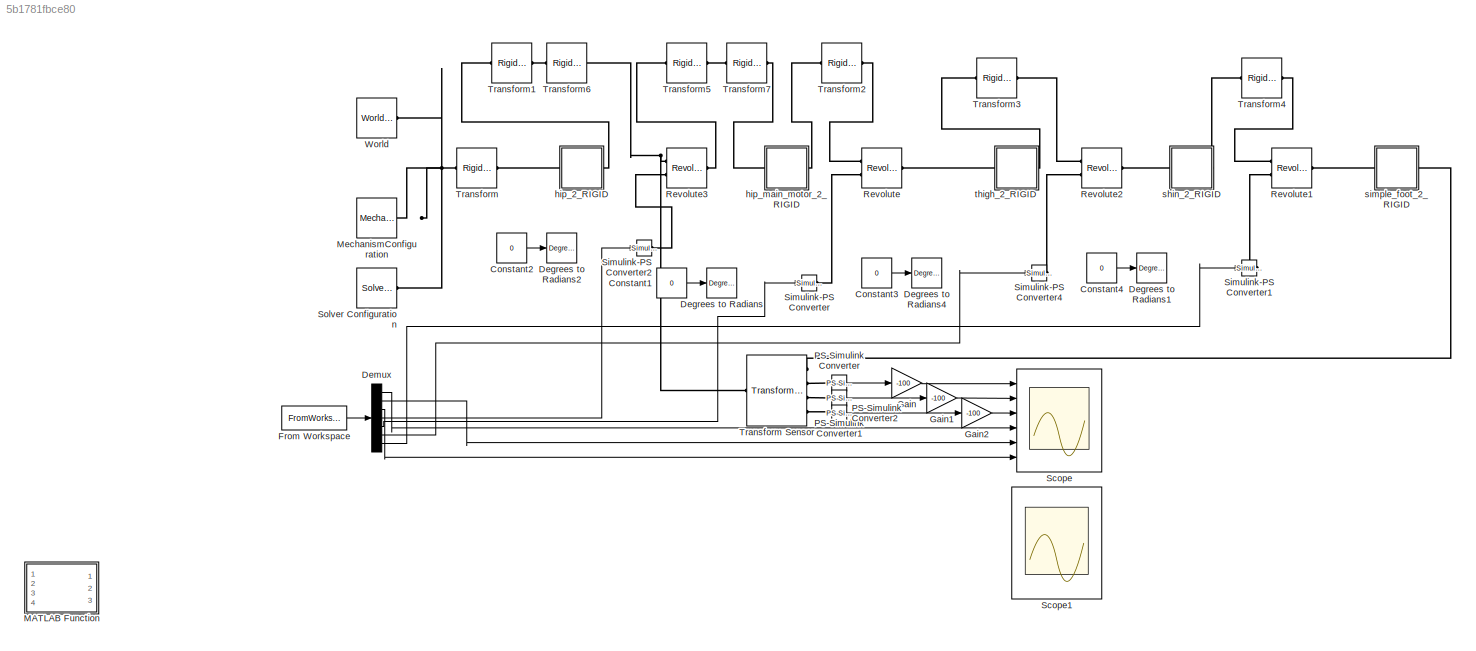
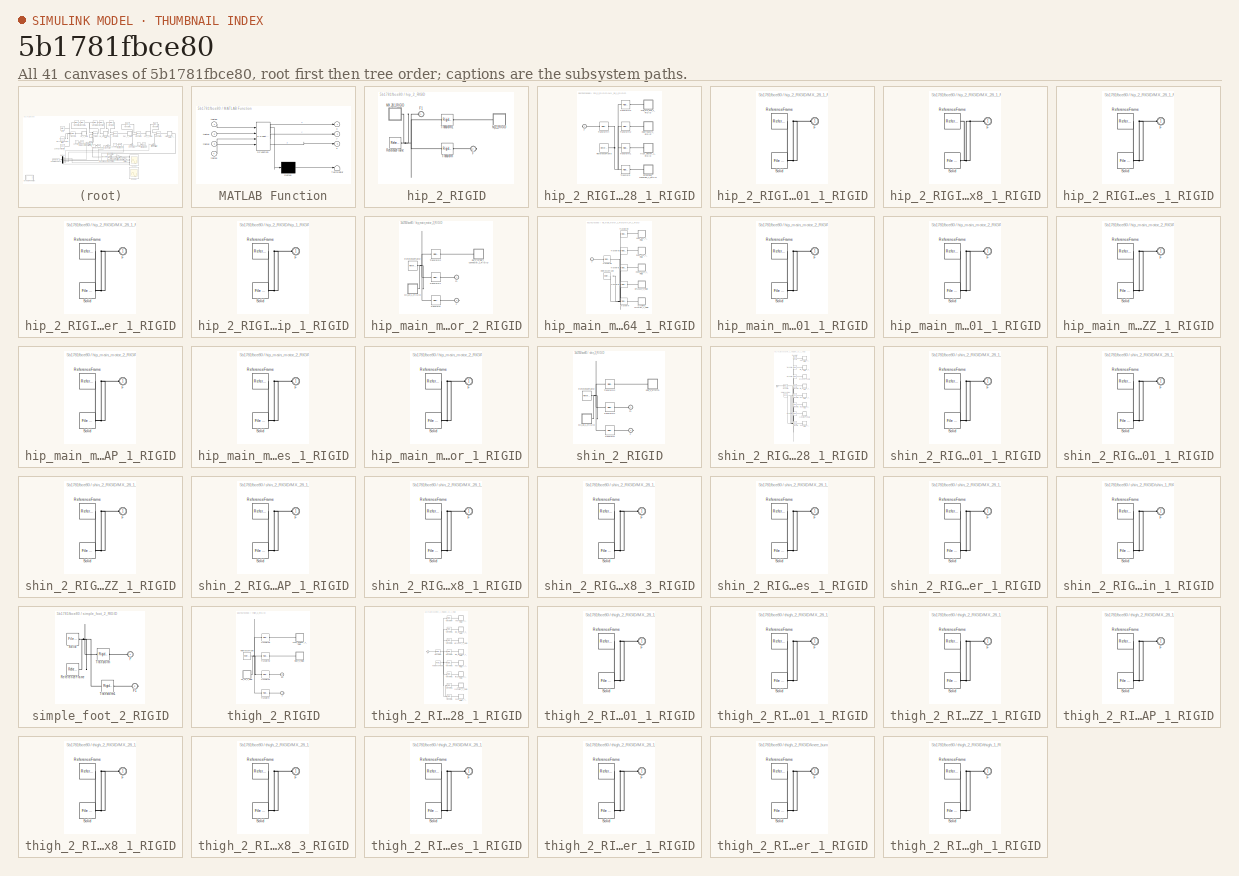
[diagram: thumbnail index - all 41 canvases of the model, root first then tree order]
MODEL slx_5b1781fbce80
KIND model
CONFIG AbsTol = auto
CONFIG EnableMultiTasking = off
CONFIG FixedStep = auto
CONFIG MaxStep = auto
CONFIG MinStep = auto
CONFIG RelTol = 1e-3
CONFIG SampleTimeConstraint = Unconstrained
CONFIG SolverName = VariableStepAuto
CONFIG StartTime = 0.0
CONFIG StopTime = 3
WORKSPACE source: external: MATLAB File  (data not in archive)
BLOCK [Constant] Constant1
  Value = 0
BLOCK [Constant] Constant2
  Value = 0
BLOCK [Constant] Constant3
  Value = 0
BLOCK [Constant] Constant4
  Value = 0
BLOCK [Reference] Degrees to Radians  REF=simulink_extras/Transformations/Degrees to
Radians
  Ports = [1, 1]
  SourceBlock = simulink_extras/Transformations/Degrees to\nRadians
  SourceProductBaseCode = SL
  SourceType = DegreesToRadians
BLOCK [Reference] Degrees to Radians1  REF=simulink_extras/Transformations/Degrees to
Radians
  Ports = [1, 1]
  SourceBlock = simulink_extras/Transformations/Degrees to\nRadians
  SourceProductBaseCode = SL
  SourceType = DegreesToRadians
BLOCK [Reference] Degrees to Radians2  REF=simulink_extras/Transformations/Degrees to
Radians
  Ports = [1, 1]
  SourceBlock = simulink_extras/Transformations/Degrees to\nRadians
  SourceProductBaseCode = SL
  SourceType = DegreesToRadians
BLOCK [Reference] Degrees to Radians4  REF=simulink_extras/Transformations/Degrees to
Radians
  Ports = [1, 1]
  SourceBlock = simulink_extras/Transformations/Degrees to\nRadians
  SourceProductBaseCode = SL
  SourceType = DegreesToRadians
BLOCK [Demux] Demux
  Outputs = 7
  Ports = [1, 7]
BLOCK [FromWorkspace] From Workspace
  Interpolate = off
  OutputAfterFinalValue = Cyclic repetition
  SampleTime = 0.1
  VariableName = line_out
BLOCK [Gain] Gain
  Gain = -100
BLOCK [Gain] Gain1
  Gain = -100
BLOCK [Gain] Gain2
  Gain = -100
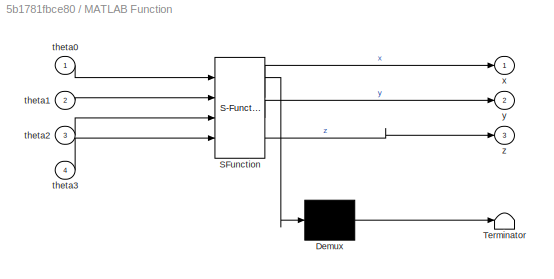
BLOCK [SubSystem] MATLAB Function
  ErrorFcn = Stateflow.Translate.translate
  PermitHierarchicalResolution = ExplicitOnly
  Ports = [4, 3]
  RequestExecContextInheritance = off
  SFBlockType = MATLAB Function
  TreatAsAtomicUnit = on
BLOCK [Demux] MATLAB Function/ Demux 
  Outputs = 1
  Ports = [1, 1]
BLOCK [S-Function] MATLAB Function/ SFunction 
  EnableBusSupport = on
  FunctionName = sf_sfun
  PortCounts = [4 4]
  Ports = [4, 4]
  SFcnIsStateOwnerBlock = off
  SFunctionDeploymentMode = off
  Tag = Stateflow S-Function 2
BLOCK [Terminator] MATLAB Function/ Terminator 
BLOCK [Inport] MATLAB Function/theta0
BLOCK [Inport] MATLAB Function/theta1
  Port = 2
BLOCK [Inport] MATLAB Function/theta2
  Port = 3
BLOCK [Inport] MATLAB Function/theta3
  Port = 4
BLOCK [Outport] MATLAB Function/x
BLOCK [Outport] MATLAB Function/y
  Port = 2
BLOCK [Outport] MATLAB Function/z
  Port = 3
BLOCK [Reference] MechanismConfiguration  REF=sm_lib/Utilities/Mechanism
Configuration
  Ports = [0, 0, 0, 0, 0, 0, 1]
  SourceBlock = sm_lib/Utilities/Mechanism\nConfiguration
  SourceProductBaseCode = MS
  SourceType = Mechanism\nConfiguration
BLOCK [Reference] PS-Simulink Converter  REF=nesl_utility/PS-Simulink
Converter
  Ports = [0, 1, 0, 0, 0, 1]
  SourceBlock = nesl_utility/PS-Simulink\nConverter
  SourceProductBaseCode = PW,SS
  SourceType = PS-Simulink\nConverter
BLOCK [Reference] PS-Simulink Converter1  REF=nesl_utility/PS-Simulink
Converter
  Ports = [0, 1, 0, 0, 0, 1]
  SourceBlock = nesl_utility/PS-Simulink\nConverter
  SourceProductBaseCode = PW,SS
  SourceType = PS-Simulink\nConverter
BLOCK [Reference] PS-Simulink Converter2  REF=nesl_utility/PS-Simulink
Converter
  Ports = [0, 1, 0, 0, 0, 1]
  SourceBlock = nesl_utility/PS-Simulink\nConverter
  SourceProductBaseCode = PW,SS
  SourceType = PS-Simulink\nConverter
BLOCK [Reference] Revolute  REF=sm_lib/Joints/Revolute Joint
  Ports = [0, 0, 0, 0, 0, 2, 1]
  SourceBlock = sm_lib/Joints/Revolute Joint
  SourceProductBaseCode = MS
  SourceType = Revolute Joint
BLOCK [Reference] Revolute1  REF=sm_lib/Joints/Revolute Joint
  Ports = [0, 0, 0, 0, 0, 2, 1]
  SourceBlock = sm_lib/Joints/Revolute Joint
  SourceProductBaseCode = MS
  SourceType = Revolute Joint
BLOCK [Reference] Revolute2  REF=sm_lib/Joints/Revolute Joint
  Ports = [0, 0, 0, 0, 0, 2, 1]
  SourceBlock = sm_lib/Joints/Revolute Joint
  SourceProductBaseCode = MS
  SourceType = Revolute Joint
BLOCK [Reference] Revolute3  REF=sm_lib/Joints/Revolute Joint
  Ports = [0, 0, 0, 0, 0, 2, 1]
  SourceBlock = sm_lib/Joints/Revolute Joint
  SourceProductBaseCode = MS
  SourceType = Revolute Joint
BLOCK [Scope] Scope
  Floating = off
  NumInputPorts = 6
  Ports = [6]
  ScopeSpecificationString = Simulink.scopes.TimeScopeBlockCfg('CurrentConfiguration', extmgr.ConfigurationSet(extmgr.Configuration('Core','General UI',true),extmgr.Configuration('Core','Source UI',true),extmgr.Configuration('Sources','WiredSimulink',true),extmgr.Configuration('Visuals','Time Domain',true,'SerializedDisplays',{struct('MinYLimReal','-23.92442','MaxYLimReal','34.15955','YLabelReal','','MinYLimMag','0.00000','Ma...<+4671ch>
BLOCK [Scope] Scope1
  Floating = off
  NumInputPorts = 4
  Ports = [4]
  ScopeSpecificationString = Simulink.scopes.TimeScopeBlockCfg('CurrentConfiguration', extmgr.ConfigurationSet(extmgr.Configuration('Core','General UI',true),extmgr.Configuration('Core','Source UI',true),extmgr.Configuration('Sources','WiredSimulink',true,'DataLoggingVariableName','ScopeData1'),extmgr.Configuration('Visuals','Time Domain',true,'SerializedDisplays',{struct('MinYLimReal','-1.00000','MaxYLimReal','1.00000','YLab...<+3505ch>
BLOCK [Reference] Simulink-PS Converter  REF=nesl_utility/Simulink-PS
Converter
  Ports = [1, 0, 0, 0, 0, 0, 1]
  SourceBlock = nesl_utility/Simulink-PS\nConverter
  SourceProductBaseCode = PW,SS
  SourceType = Simulink-PS\nConverter
BLOCK [Reference] Simulink-PS Converter1  REF=nesl_utility/Simulink-PS
Converter
  Ports = [1, 0, 0, 0, 0, 0, 1]
  SourceBlock = nesl_utility/Simulink-PS\nConverter
  SourceProductBaseCode = PW,SS
  SourceType = Simulink-PS\nConverter
BLOCK [Reference] Simulink-PS Converter2  REF=nesl_utility/Simulink-PS
Converter
  Ports = [1, 0, 0, 0, 0, 0, 1]
  SourceBlock = nesl_utility/Simulink-PS\nConverter
  SourceProductBaseCode = PW,SS
  SourceType = Simulink-PS\nConverter
BLOCK [Reference] Simulink-PS Converter4  REF=nesl_utility/Simulink-PS
Converter
  Ports = [1, 0, 0, 0, 0, 0, 1]
  SourceBlock = nesl_utility/Simulink-PS\nConverter
  SourceProductBaseCode = PW,SS
  SourceType = Simulink-PS\nConverter
BLOCK [Reference] Solver Configuration  REF=nesl_utility/Solver
Configuration
  Ports = [0, 0, 0, 0, 0, 0, 1]
  SourceBlock = nesl_utility/Solver\nConfiguration
  SourceProductBaseCode = PW,SS
  SourceType = Solver\nConfiguration
BLOCK [Reference] Transform  REF=sm_lib/Frames and
Transforms/Rigid
Transform
  Ports = [0, 0, 0, 0, 0, 1, 1]
  SourceBlock = sm_lib/Frames and\nTransforms/Rigid\nTransform
  SourceProductBaseCode = MS
  SourceType = Rigid\nTransform
BLOCK [Reference] Transform Sensor  REF=sm_lib/Frames and
Transforms/Transform
Sensor
  Ports = [0, 0, 0, 0, 0, 1, 4]
  SourceBlock = sm_lib/Frames and\nTransforms/Transform\nSensor
  SourceProductBaseCode = MS
  SourceType = Transform\nSensor
BLOCK [Reference] Transform1  REF=sm_lib/Frames and
Transforms/Rigid
Transform
  Ports = [0, 0, 0, 0, 0, 1, 1]
  SourceBlock = sm_lib/Frames and\nTransforms/Rigid\nTransform
  SourceProductBaseCode = MS
  SourceType = Rigid\nTransform
BLOCK [Reference] Transform2  REF=sm_lib/Frames and
Transforms/Rigid
Transform
  Ports = [0, 0, 0, 0, 0, 1, 1]
  SourceBlock = sm_lib/Frames and\nTransforms/Rigid\nTransform
  SourceProductBaseCode = MS
  SourceType = Rigid\nTransform
BLOCK [Reference] Transform3  REF=sm_lib/Frames and
Transforms/Rigid
Transform
  Ports = [0, 0, 0, 0, 0, 1, 1]
  SourceBlock = sm_lib/Frames and\nTransforms/Rigid\nTransform
  SourceProductBaseCode = MS
  SourceType = Rigid\nTransform
BLOCK [Reference] Transform4  REF=sm_lib/Frames and
Transforms/Rigid
Transform
  Ports = [0, 0, 0, 0, 0, 1, 1]
  SourceBlock = sm_lib/Frames and\nTransforms/Rigid\nTransform
  SourceProductBaseCode = MS
  SourceType = Rigid\nTransform
BLOCK [Reference] Transform5  REF=sm_lib/Frames and
Transforms/Rigid
Transform
  Ports = [0, 0, 0, 0, 0, 1, 1]
  SourceBlock = sm_lib/Frames and\nTransforms/Rigid\nTransform
  SourceProductBaseCode = MS
  SourceType = Rigid\nTransform
BLOCK [Reference] Transform6  REF=sm_lib/Frames and
Transforms/Rigid
Transform
  Ports = [0, 0, 0, 0, 0, 1, 1]
  SourceBlock = sm_lib/Frames and\nTransforms/Rigid\nTransform
  SourceProductBaseCode = MS
  SourceType = Rigid\nTransform
BLOCK [Reference] Transform7  REF=sm_lib/Frames and
Transforms/Rigid
Transform
  Ports = [0, 0, 0, 0, 0, 1, 1]
  SourceBlock = sm_lib/Frames and\nTransforms/Rigid\nTransform
  SourceProductBaseCode = MS
  SourceType = Rigid\nTransform
BLOCK [Reference] World  REF=sm_lib/Frames and
Transforms/World Frame
  Ports = [0, 0, 0, 0, 0, 0, 1]
  SourceBlock = sm_lib/Frames and\nTransforms/World Frame
  SourceProductBaseCode = MS
  SourceType = World Frame
BLOCK [SubSystem] hip_2_RIGID
  Ports = [0, 0, 0, 0, 0, 1, 1]
  RequestExecContextInheritance = off
BLOCK [PMIOPort] hip_2_RIGID/F
  Port = 2
  Side = Right
BLOCK [PMIOPort] hip_2_RIGID/F1
  Side = Left
BLOCK [SubSystem] hip_2_RIGID/MX_28_1_RIGID
  Ports = [0, 0, 0, 0, 0, 0, 1]
  RequestExecContextInheritance = off
BLOCK [PMIOPort] hip_2_RIGID/MX_28_1_RIGID/F
  Side = Right
BLOCK [SubSystem] hip_2_RIGID/MX_28_1_RIGID/HN07_N101_1_RIGID
  Ports = [0, 0, 0, 0, 0, 1]
  RequestExecContextInheritance = off
BLOCK [PMIOPort] hip_2_RIGID/MX_28_1_RIGID/HN07_N101_1_RIGID/F
  Side = Left
BLOCK [Reference] hip_2_RIGID/MX_28_1_RIGID/HN07_N101_1_RIGID/ReferenceFrame  REF=sm_lib/Frames and
Transforms/Reference
Frame
  Ports = [0, 0, 0, 0, 0, 0, 1]
  SourceBlock = sm_lib/Frames and\nTransforms/Reference\nFrame
  SourceProductBaseCode = MS
  SourceType = Reference\nFrame
BLOCK [Reference] hip_2_RIGID/MX_28_1_RIGID/HN07_N101_1_RIGID/Solid  REF=sm_lib/Body Elements/File Solid
  Ports = [0, 0, 0, 0, 0, 0, 1]
  SourceBlock = sm_lib/Body Elements/File Solid
  SourceProductBaseCode = MS
  SourceType = File Solid
BLOCK [Reference] hip_2_RIGID/MX_28_1_RIGID/ReferenceFrame  REF=sm_lib/Frames and
Transforms/Reference
Frame
  Ports = [0, 0, 0, 0, 0, 0, 1]
  SourceBlock = sm_lib/Frames and\nTransforms/Reference\nFrame
  SourceProductBaseCode = MS
  SourceType = Reference\nFrame
BLOCK [Reference] hip_2_RIGID/MX_28_1_RIGID/Transform  REF=sm_lib/Frames and
Transforms/Rigid
Transform
  Ports = [0, 0, 0, 0, 0, 1, 1]
  SourceBlock = sm_lib/Frames and\nTransforms/Rigid\nTransform
  SourceProductBaseCode = MS
  SourceType = Rigid\nTransform
BLOCK [Reference] hip_2_RIGID/MX_28_1_RIGID/Transform1  REF=sm_lib/Frames and
Transforms/Rigid
Transform
  Ports = [0, 0, 0, 0, 0, 1, 1]
  SourceBlock = sm_lib/Frames and\nTransforms/Rigid\nTransform
  SourceProductBaseCode = MS
  SourceType = Rigid\nTransform
BLOCK [Reference] hip_2_RIGID/MX_28_1_RIGID/Transform2  REF=sm_lib/Frames and
Transforms/Rigid
Transform
  Ports = [0, 0, 0, 0, 0, 1, 1]
  SourceBlock = sm_lib/Frames and\nTransforms/Rigid\nTransform
  SourceProductBaseCode = MS
  SourceType = Rigid\nTransform
BLOCK [Reference] hip_2_RIGID/MX_28_1_RIGID/Transform3  REF=sm_lib/Frames and
Transforms/Rigid
Transform
  Ports = [0, 0, 0, 0, 0, 1, 1]
  SourceBlock = sm_lib/Frames and\nTransforms/Rigid\nTransform
  SourceProductBaseCode = MS
  SourceType = Rigid\nTransform
BLOCK [Reference] hip_2_RIGID/MX_28_1_RIGID/Transform4  REF=sm_lib/Frames and
Transforms/Rigid
Transform
  Ports = [0, 0, 0, 0, 0, 1, 1]
  SourceBlock = sm_lib/Frames and\nTransforms/Rigid\nTransform
  SourceProductBaseCode = MS
  SourceType = Rigid\nTransform
BLOCK [SubSystem] hip_2_RIGID/MX_28_1_RIGID/WB_M2_5x8_1_RIGID
  Ports = [0, 0, 0, 0, 0, 1]
  RequestExecContextInheritance = off
BLOCK [PMIOPort] hip_2_RIGID/MX_28_1_RIGID/WB_M2_5x8_1_RIGID/F
  Side = Left
BLOCK [Reference] hip_2_RIGID/MX_28_1_RIGID/WB_M2_5x8_1_RIGID/ReferenceFrame  REF=sm_lib/Frames and
Transforms/Reference
Frame
  Ports = [0, 0, 0, 0, 0, 0, 1]
  SourceBlock = sm_lib/Frames and\nTransforms/Reference\nFrame
  SourceProductBaseCode = MS
  SourceType = Reference\nFrame
BLOCK [Reference] hip_2_RIGID/MX_28_1_RIGID/WB_M2_5x8_1_RIGID/Solid  REF=sm_lib/Body Elements/File Solid
  Ports = [0, 0, 0, 0, 0, 0, 1]
  SourceBlock = sm_lib/Body Elements/File Solid
  SourceProductBaseCode = MS
  SourceType = File Solid
BLOCK [SubSystem] hip_2_RIGID/MX_28_1_RIGID/dynamixel_x28series_1_RIGID
  Ports = [0, 0, 0, 0, 0, 1]
  RequestExecContextInheritance = off
BLOCK [PMIOPort] hip_2_RIGID/MX_28_1_RIGID/dynamixel_x28series_1_RIGID/F
  Side = Left
BLOCK [Reference] hip_2_RIGID/MX_28_1_RIGID/dynamixel_x28series_1_RIGID/ReferenceFrame  REF=sm_lib/Frames and
Transforms/Reference
Frame
  Ports = [0, 0, 0, 0, 0, 0, 1]
  SourceBlock = sm_lib/Frames and\nTransforms/Reference\nFrame
  SourceProductBaseCode = MS
  SourceType = Reference\nFrame
BLOCK [Reference] hip_2_RIGID/MX_28_1_RIGID/dynamixel_x28series_1_RIGID/Solid  REF=sm_lib/Body Elements/File Solid
  Ports = [0, 0, 0, 0, 0, 0, 1]
  SourceBlock = sm_lib/Body Elements/File Solid
  SourceProductBaseCode = MS
  SourceType = File Solid
BLOCK [SubSystem] hip_2_RIGID/MX_28_1_RIGID/trust_washer_1_RIGID
  Ports = [0, 0, 0, 0, 0, 1]
  RequestExecContextInheritance = off
BLOCK [PMIOPort] hip_2_RIGID/MX_28_1_RIGID/trust_washer_1_RIGID/F
  Side = Left
BLOCK [Reference] hip_2_RIGID/MX_28_1_RIGID/trust_washer_1_RIGID/ReferenceFrame  REF=sm_lib/Frames and
Transforms/Reference
Frame
  Ports = [0, 0, 0, 0, 0, 0, 1]
  SourceBlock = sm_lib/Frames and\nTransforms/Reference\nFrame
  SourceProductBaseCode = MS
  SourceType = Reference\nFrame
BLOCK [Reference] hip_2_RIGID/MX_28_1_RIGID/trust_washer_1_RIGID/Solid  REF=sm_lib/Body Elements/File Solid
  Ports = [0, 0, 0, 0, 0, 0, 1]
  SourceBlock = sm_lib/Body Elements/File Solid
  SourceProductBaseCode = MS
  SourceType = File Solid
BLOCK [Reference] hip_2_RIGID/ReferenceFrame  REF=sm_lib/Frames and
Transforms/Reference
Frame
  Ports = [0, 0, 0, 0, 0, 0, 1]
  SourceBlock = sm_lib/Frames and\nTransforms/Reference\nFrame
  SourceProductBaseCode = MS
  SourceType = Reference\nFrame
BLOCK [Reference] hip_2_RIGID/Transform  REF=sm_lib/Frames and
Transforms/Rigid
Transform
  Ports = [0, 0, 0, 0, 0, 1, 1]
  SourceBlock = sm_lib/Frames and\nTransforms/Rigid\nTransform
  SourceProductBaseCode = MS
  SourceType = Rigid\nTransform
BLOCK [Reference] hip_2_RIGID/Transform1  REF=sm_lib/Frames and
Transforms/Rigid
Transform
  Ports = [0, 0, 0, 0, 0, 1, 1]
  SourceBlock = sm_lib/Frames and\nTransforms/Rigid\nTransform
  SourceProductBaseCode = MS
  SourceType = Rigid\nTransform
BLOCK [SubSystem] hip_2_RIGID/hip_1_RIGID
  Ports = [0, 0, 0, 0, 0, 1]
  RequestExecContextInheritance = off
BLOCK [PMIOPort] hip_2_RIGID/hip_1_RIGID/F
  Side = Left
BLOCK [Reference] hip_2_RIGID/hip_1_RIGID/ReferenceFrame  REF=sm_lib/Frames and
Transforms/Reference
Frame
  Ports = [0, 0, 0, 0, 0, 0, 1]
  SourceBlock = sm_lib/Frames and\nTransforms/Reference\nFrame
  SourceProductBaseCode = MS
  SourceType = Reference\nFrame
BLOCK [Reference] hip_2_RIGID/hip_1_RIGID/Solid  REF=sm_lib/Body Elements/File Solid
  Ports = [0, 0, 0, 0, 0, 0, 1]
  SourceBlock = sm_lib/Body Elements/File Solid
  SourceProductBaseCode = MS
  SourceType = File Solid
BLOCK [SubSystem] hip_main_motor_2_RIGID
  Ports = [0, 0, 0, 0, 0, 1, 1]
  RequestExecContextInheritance = off
BLOCK [PMIOPort] hip_main_motor_2_RIGID/F
  Port = 2
  Side = Right
BLOCK [PMIOPort] hip_main_motor_2_RIGID/F1
  Side = Left
BLOCK [SubSystem] hip_main_motor_2_RIGID/MX_64_1_RIGID
  Ports = [0, 0, 0, 0, 0, 0, 1]
  RequestExecContextInheritance = off
BLOCK [PMIOPort] hip_main_motor_2_RIGID/MX_64_1_RIGID/F
  Side = Right
BLOCK [SubSystem] hip_main_motor_2_RIGID/MX_64_1_RIGID/HN05_N101_1_RIGID
  Ports = [0, 0, 0, 0, 0, 1]
  RequestExecContextInheritance = off
BLOCK [PMIOPort] hip_main_motor_2_RIGID/MX_64_1_RIGID/HN05_N101_1_RIGID/F
  Side = Left
BLOCK [Reference] hip_main_motor_2_RIGID/MX_64_1_RIGID/HN05_N101_1_RIGID/ReferenceFrame  REF=sm_lib/Frames and
Transforms/Reference
Frame
  Ports = [0, 0, 0, 0, 0, 0, 1]
  SourceBlock = sm_lib/Frames and\nTransforms/Reference\nFrame
  SourceProductBaseCode = MS
  SourceType = Reference\nFrame
BLOCK [Reference] hip_main_motor_2_RIGID/MX_64_1_RIGID/HN05_N101_1_RIGID/Solid  REF=sm_lib/Body Elements/File Solid
  Ports = [0, 0, 0, 0, 0, 0, 1]
  SourceBlock = sm_lib/Body Elements/File Solid
  SourceProductBaseCode = MS
  SourceType = File Solid
BLOCK [SubSystem] hip_main_motor_2_RIGID/MX_64_1_RIGID/HN05_i101_1_RIGID
  Ports = [0, 0, 0, 0, 0, 1]
  RequestExecContextInheritance = off
BLOCK [PMIOPort] hip_main_motor_2_RIGID/MX_64_1_RIGID/HN05_i101_1_RIGID/F
  Side = Left
BLOCK [Reference] hip_main_motor_2_RIGID/MX_64_1_RIGID/HN05_i101_1_RIGID/ReferenceFrame  REF=sm_lib/Frames and
Transforms/Reference
Frame
  Ports = [0, 0, 0, 0, 0, 0, 1]
  SourceBlock = sm_lib/Frames and\nTransforms/Reference\nFrame
  SourceProductBaseCode = MS
  SourceType = Reference\nFrame
BLOCK [Reference] hip_main_motor_2_RIGID/MX_64_1_RIGID/HN05_i101_1_RIGID/Solid  REF=sm_lib/Body Elements/File Solid
  Ports = [0, 0, 0, 0, 0, 0, 1]
  SourceBlock = sm_lib/Body Elements/File Solid
  SourceProductBaseCode = MS
  SourceType = File Solid
BLOCK [SubSystem] hip_main_motor_2_RIGID/MX_64_1_RIGID/MF128ZZ_1_RIGID
  Ports = [0, 0, 0, 0, 0, 1]
  RequestExecContextInheritance = off
BLOCK [PMIOPort] hip_main_motor_2_RIGID/MX_64_1_RIGID/MF128ZZ_1_RIGID/F
  Side = Left
BLOCK [Reference] hip_main_motor_2_RIGID/MX_64_1_RIGID/MF128ZZ_1_RIGID/ReferenceFrame  REF=sm_lib/Frames and
Transforms/Reference
Frame
  Ports = [0, 0, 0, 0, 0, 0, 1]
  SourceBlock = sm_lib/Frames and\nTransforms/Reference\nFrame
  SourceProductBaseCode = MS
  SourceType = Reference\nFrame
BLOCK [Reference] hip_main_motor_2_RIGID/MX_64_1_RIGID/MF128ZZ_1_RIGID/Solid  REF=sm_lib/Body Elements/File Solid
  Ports = [0, 0, 0, 0, 0, 0, 1]
  SourceBlock = sm_lib/Body Elements/File Solid
  SourceProductBaseCode = MS
  SourceType = File Solid
BLOCK [SubSystem] hip_main_motor_2_RIGID/MX_64_1_RIGID/RX64_CAP_1_RIGID
  Ports = [0, 0, 0, 0, 0, 1]
  RequestExecContextInheritance = off
BLOCK [PMIOPort] hip_main_motor_2_RIGID/MX_64_1_RIGID/RX64_CAP_1_RIGID/F
  Side = Left
BLOCK [Reference] hip_main_motor_2_RIGID/MX_64_1_RIGID/RX64_CAP_1_RIGID/ReferenceFrame  REF=sm_lib/Frames and
Transforms/Reference
Frame
  Ports = [0, 0, 0, 0, 0, 0, 1]
  SourceBlock = sm_lib/Frames and\nTransforms/Reference\nFrame
  SourceProductBaseCode = MS
  SourceType = Reference\nFrame
BLOCK [Reference] hip_main_motor_2_RIGID/MX_64_1_RIGID/RX64_CAP_1_RIGID/Solid  REF=sm_lib/Body Elements/File Solid
  Ports = [0, 0, 0, 0, 0, 0, 1]
  SourceBlock = sm_lib/Body Elements/File Solid
  SourceProductBaseCode = MS
  SourceType = File Solid
BLOCK [Reference] hip_main_motor_2_RIGID/MX_64_1_RIGID/ReferenceFrame  REF=sm_lib/Frames and
Transforms/Reference
Frame
  Ports = [0, 0, 0, 0, 0, 0, 1]
  SourceBlock = sm_lib/Frames and\nTransforms/Reference\nFrame
  SourceProductBaseCode = MS
  SourceType = Reference\nFrame
BLOCK [Reference] hip_main_motor_2_RIGID/MX_64_1_RIGID/Transform  REF=sm_lib/Frames and
Transforms/Rigid
Transform
  Ports = [0, 0, 0, 0, 0, 1, 1]
  SourceBlock = sm_lib/Frames and\nTransforms/Rigid\nTransform
  SourceProductBaseCode = MS
  SourceType = Rigid\nTransform
BLOCK [Reference] hip_main_motor_2_RIGID/MX_64_1_RIGID/Transform1  REF=sm_lib/Frames and
Transforms/Rigid
Transform
  Ports = [0, 0, 0, 0, 0, 1, 1]
  SourceBlock = sm_lib/Frames and\nTransforms/Rigid\nTransform
  SourceProductBaseCode = MS
  SourceType = Rigid\nTransform
BLOCK [Reference] hip_main_motor_2_RIGID/MX_64_1_RIGID/Transform2  REF=sm_lib/Frames and
Transforms/Rigid
Transform
  Ports = [0, 0, 0, 0, 0, 1, 1]
  SourceBlock = sm_lib/Frames and\nTransforms/Rigid\nTransform
  SourceProductBaseCode = MS
  SourceType = Rigid\nTransform
BLOCK [Reference] hip_main_motor_2_RIGID/MX_64_1_RIGID/Transform3  REF=sm_lib/Frames and
Transforms/Rigid
Transform
  Ports = [0, 0, 0, 0, 0, 1, 1]
  SourceBlock = sm_lib/Frames and\nTransforms/Rigid\nTransform
  SourceProductBaseCode = MS
  SourceType = Rigid\nTransform
BLOCK [Reference] hip_main_motor_2_RIGID/MX_64_1_RIGID/Transform4  REF=sm_lib/Frames and
Transforms/Rigid
Transform
  Ports = [0, 0, 0, 0, 0, 1, 1]
  SourceBlock = sm_lib/Frames and\nTransforms/Rigid\nTransform
  SourceProductBaseCode = MS
  SourceType = Rigid\nTransform
BLOCK [Reference] hip_main_motor_2_RIGID/MX_64_1_RIGID/Transform5  REF=sm_lib/Frames and
Transforms/Rigid
Transform
  Ports = [0, 0, 0, 0, 0, 1, 1]
  SourceBlock = sm_lib/Frames and\nTransforms/Rigid\nTransform
  SourceProductBaseCode = MS
  SourceType = Rigid\nTransform
BLOCK [SubSystem] hip_main_motor_2_RIGID/MX_64_1_RIGID/dynamixel_x64series_1_RIGID
  Ports = [0, 0, 0, 0, 0, 1]
  RequestExecContextInheritance = off
BLOCK [PMIOPort] hip_main_motor_2_RIGID/MX_64_1_RIGID/dynamixel_x64series_1_RIGID/F
  Side = Left
BLOCK [Reference] hip_main_motor_2_RIGID/MX_64_1_RIGID/dynamixel_x64series_1_RIGID/ReferenceFrame  REF=sm_lib/Frames and
Transforms/Reference
Frame
  Ports = [0, 0, 0, 0, 0, 0, 1]
  SourceBlock = sm_lib/Frames and\nTransforms/Reference\nFrame
  SourceProductBaseCode = MS
  SourceType = Reference\nFrame
BLOCK [Reference] hip_main_motor_2_RIGID/MX_64_1_RIGID/dynamixel_x64series_1_RIGID/Solid  REF=sm_lib/Body Elements/File Solid
  Ports = [0, 0, 0, 0, 0, 0, 1]
  SourceBlock = sm_lib/Body Elements/File Solid
  SourceProductBaseCode = MS
  SourceType = File Solid
BLOCK [Reference] hip_main_motor_2_RIGID/ReferenceFrame  REF=sm_lib/Frames and
Transforms/Reference
Frame
  Ports = [0, 0, 0, 0, 0, 0, 1]
  SourceBlock = sm_lib/Frames and\nTransforms/Reference\nFrame
  SourceProductBaseCode = MS
  SourceType = Reference\nFrame
BLOCK [Reference] hip_main_motor_2_RIGID/Transform  REF=sm_lib/Frames and
Transforms/Rigid
Transform
  Ports = [0, 0, 0, 0, 0, 1, 1]
  SourceBlock = sm_lib/Frames and\nTransforms/Rigid\nTransform
  SourceProductBaseCode = MS
  SourceType = Rigid\nTransform
BLOCK [Reference] hip_main_motor_2_RIGID/Transform1  REF=sm_lib/Frames and
Transforms/Rigid
Transform
  Ports = [0, 0, 0, 0, 0, 1, 1]
  SourceBlock = sm_lib/Frames and\nTransforms/Rigid\nTransform
  SourceProductBaseCode = MS
  SourceType = Rigid\nTransform
BLOCK [Reference] hip_main_motor_2_RIGID/Transform2  REF=sm_lib/Frames and
Transforms/Rigid
Transform
  Ports = [0, 0, 0, 0, 0, 1, 1]
  SourceBlock = sm_lib/Frames and\nTransforms/Rigid\nTransform
  SourceProductBaseCode = MS
  SourceType = Rigid\nTransform
BLOCK [SubSystem] hip_main_motor_2_RIGID/hip_z_to_hip_y_connector_1_RIGID
  Ports = [0, 0, 0, 0, 0, 1]
  RequestExecContextInheritance = off
BLOCK [PMIOPort] hip_main_motor_2_RIGID/hip_z_to_hip_y_connector_1_RIGID/F
  Side = Left
BLOCK [Reference] hip_main_motor_2_RIGID/hip_z_to_hip_y_connector_1_RIGID/ReferenceFrame  REF=sm_lib/Frames and
Transforms/Reference
Frame
  Ports = [0, 0, 0, 0, 0, 0, 1]
  SourceBlock = sm_lib/Frames and\nTransforms/Reference\nFrame
  SourceProductBaseCode = MS
  SourceType = Reference\nFrame
BLOCK [Reference] hip_main_motor_2_RIGID/hip_z_to_hip_y_connector_1_RIGID/Solid  REF=sm_lib/Body Elements/File Solid
  Ports = [0, 0, 0, 0, 0, 0, 1]
  SourceBlock = sm_lib/Body Elements/File Solid
  SourceProductBaseCode = MS
  SourceType = File Solid
BLOCK [SubSystem] shin_2_RIGID
  Ports = [0, 0, 0, 0, 0, 1, 1]
  RequestExecContextInheritance = off
BLOCK [PMIOPort] shin_2_RIGID/F
  Port = 2
  Side = Right
BLOCK [PMIOPort] shin_2_RIGID/F1
  Side = Left
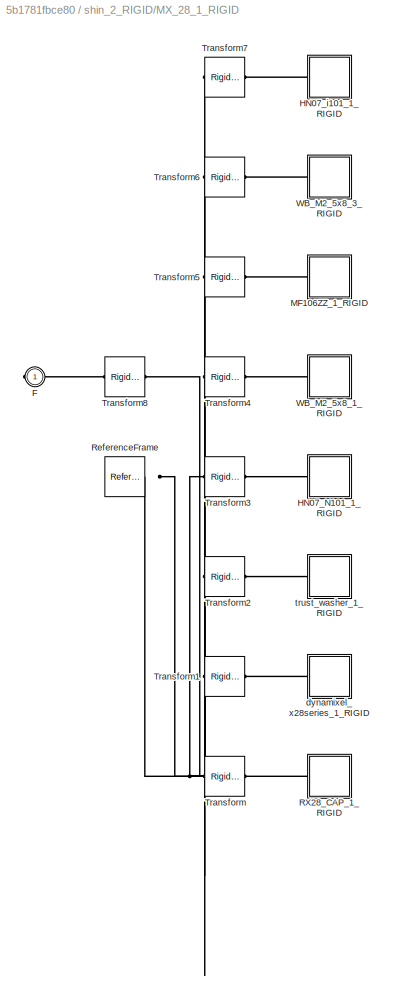
BLOCK [SubSystem] shin_2_RIGID/MX_28_1_RIGID
  Ports = [0, 0, 0, 0, 0, 0, 1]
  RequestExecContextInheritance = off
BLOCK [PMIOPort] shin_2_RIGID/MX_28_1_RIGID/F
  Side = Right
BLOCK [SubSystem] shin_2_RIGID/MX_28_1_RIGID/HN07_N101_1_RIGID
  Ports = [0, 0, 0, 0, 0, 1]
  RequestExecContextInheritance = off
BLOCK [PMIOPort] shin_2_RIGID/MX_28_1_RIGID/HN07_N101_1_RIGID/F
  Side = Left
BLOCK [Reference] shin_2_RIGID/MX_28_1_RIGID/HN07_N101_1_RIGID/ReferenceFrame  REF=sm_lib/Frames and
Transforms/Reference
Frame
  Ports = [0, 0, 0, 0, 0, 0, 1]
  SourceBlock = sm_lib/Frames and\nTransforms/Reference\nFrame
  SourceProductBaseCode = MS
  SourceType = Reference\nFrame
BLOCK [Reference] shin_2_RIGID/MX_28_1_RIGID/HN07_N101_1_RIGID/Solid  REF=sm_lib/Body Elements/File Solid
  Ports = [0, 0, 0, 0, 0, 0, 1]
  SourceBlock = sm_lib/Body Elements/File Solid
  SourceProductBaseCode = MS
  SourceType = File Solid
BLOCK [SubSystem] shin_2_RIGID/MX_28_1_RIGID/HN07_i101_1_RIGID
  Ports = [0, 0, 0, 0, 0, 1]
  RequestExecContextInheritance = off
BLOCK [PMIOPort] shin_2_RIGID/MX_28_1_RIGID/HN07_i101_1_RIGID/F
  Side = Left
BLOCK [Reference] shin_2_RIGID/MX_28_1_RIGID/HN07_i101_1_RIGID/ReferenceFrame  REF=sm_lib/Frames and
Transforms/Reference
Frame
  Ports = [0, 0, 0, 0, 0, 0, 1]
  SourceBlock = sm_lib/Frames and\nTransforms/Reference\nFrame
  SourceProductBaseCode = MS
  SourceType = Reference\nFrame
BLOCK [Reference] shin_2_RIGID/MX_28_1_RIGID/HN07_i101_1_RIGID/Solid  REF=sm_lib/Body Elements/File Solid
  Ports = [0, 0, 0, 0, 0, 0, 1]
  SourceBlock = sm_lib/Body Elements/File Solid
  SourceProductBaseCode = MS
  SourceType = File Solid
BLOCK [SubSystem] shin_2_RIGID/MX_28_1_RIGID/MF106ZZ_1_RIGID
  Ports = [0, 0, 0, 0, 0, 1]
  RequestExecContextInheritance = off
BLOCK [PMIOPort] shin_2_RIGID/MX_28_1_RIGID/MF106ZZ_1_RIGID/F
  Side = Left
BLOCK [Reference] shin_2_RIGID/MX_28_1_RIGID/MF106ZZ_1_RIGID/ReferenceFrame  REF=sm_lib/Frames and
Transforms/Reference
Frame
  Ports = [0, 0, 0, 0, 0, 0, 1]
  SourceBlock = sm_lib/Frames and\nTransforms/Reference\nFrame
  SourceProductBaseCode = MS
  SourceType = Reference\nFrame
BLOCK [Reference] shin_2_RIGID/MX_28_1_RIGID/MF106ZZ_1_RIGID/Solid  REF=sm_lib/Body Elements/File Solid
  Ports = [0, 0, 0, 0, 0, 0, 1]
  SourceBlock = sm_lib/Body Elements/File Solid
  SourceProductBaseCode = MS
  SourceType = File Solid
BLOCK [SubSystem] shin_2_RIGID/MX_28_1_RIGID/RX28_CAP_1_RIGID
  Ports = [0, 0, 0, 0, 0, 1]
  RequestExecContextInheritance = off
BLOCK [PMIOPort] shin_2_RIGID/MX_28_1_RIGID/RX28_CAP_1_RIGID/F
  Side = Left
BLOCK [Reference] shin_2_RIGID/MX_28_1_RIGID/RX28_CAP_1_RIGID/ReferenceFrame  REF=sm_lib/Frames and
Transforms/Reference
Frame
  Ports = [0, 0, 0, 0, 0, 0, 1]
  SourceBlock = sm_lib/Frames and\nTransforms/Reference\nFrame
  SourceProductBaseCode = MS
  SourceType = Reference\nFrame
BLOCK [Reference] shin_2_RIGID/MX_28_1_RIGID/RX28_CAP_1_RIGID/Solid  REF=sm_lib/Body Elements/File Solid
  Ports = [0, 0, 0, 0, 0, 0, 1]
  SourceBlock = sm_lib/Body Elements/File Solid
  SourceProductBaseCode = MS
  SourceType = File Solid
BLOCK [Reference] shin_2_RIGID/MX_28_1_RIGID/ReferenceFrame  REF=sm_lib/Frames and
Transforms/Reference
Frame
  Ports = [0, 0, 0, 0, 0, 0, 1]
  SourceBlock = sm_lib/Frames and\nTransforms/Reference\nFrame
  SourceProductBaseCode = MS
  SourceType = Reference\nFrame
BLOCK [Reference] shin_2_RIGID/MX_28_1_RIGID/Transform  REF=sm_lib/Frames and
Transforms/Rigid
Transform
  Ports = [0, 0, 0, 0, 0, 1, 1]
  SourceBlock = sm_lib/Frames and\nTransforms/Rigid\nTransform
  SourceProductBaseCode = MS
  SourceType = Rigid\nTransform
BLOCK [Reference] shin_2_RIGID/MX_28_1_RIGID/Transform1  REF=sm_lib/Frames and
Transforms/Rigid
Transform
  Ports = [0, 0, 0, 0, 0, 1, 1]
  SourceBlock = sm_lib/Frames and\nTransforms/Rigid\nTransform
  SourceProductBaseCode = MS
  SourceType = Rigid\nTransform
BLOCK [Reference] shin_2_RIGID/MX_28_1_RIGID/Transform2  REF=sm_lib/Frames and
Transforms/Rigid
Transform
  Ports = [0, 0, 0, 0, 0, 1, 1]
  SourceBlock = sm_lib/Frames and\nTransforms/Rigid\nTransform
  SourceProductBaseCode = MS
  SourceType = Rigid\nTransform
BLOCK [Reference] shin_2_RIGID/MX_28_1_RIGID/Transform3  REF=sm_lib/Frames and
Transforms/Rigid
Transform
  Ports = [0, 0, 0, 0, 0, 1, 1]
  SourceBlock = sm_lib/Frames and\nTransforms/Rigid\nTransform
  SourceProductBaseCode = MS
  SourceType = Rigid\nTransform
BLOCK [Reference] shin_2_RIGID/MX_28_1_RIGID/Transform4  REF=sm_lib/Frames and
Transforms/Rigid
Transform
  Ports = [0, 0, 0, 0, 0, 1, 1]
  SourceBlock = sm_lib/Frames and\nTransforms/Rigid\nTransform
  SourceProductBaseCode = MS
  SourceType = Rigid\nTransform
BLOCK [Reference] shin_2_RIGID/MX_28_1_RIGID/Transform5  REF=sm_lib/Frames and
Transforms/Rigid
Transform
  Ports = [0, 0, 0, 0, 0, 1, 1]
  SourceBlock = sm_lib/Frames and\nTransforms/Rigid\nTransform
  SourceProductBaseCode = MS
  SourceType = Rigid\nTransform
BLOCK [Reference] shin_2_RIGID/MX_28_1_RIGID/Transform6  REF=sm_lib/Frames and
Transforms/Rigid
Transform
  Ports = [0, 0, 0, 0, 0, 1, 1]
  SourceBlock = sm_lib/Frames and\nTransforms/Rigid\nTransform
  SourceProductBaseCode = MS
  SourceType = Rigid\nTransform
BLOCK [Reference] shin_2_RIGID/MX_28_1_RIGID/Transform7  REF=sm_lib/Frames and
Transforms/Rigid
Transform
  Ports = [0, 0, 0, 0, 0, 1, 1]
  SourceBlock = sm_lib/Frames and\nTransforms/Rigid\nTransform
  SourceProductBaseCode = MS
  SourceType = Rigid\nTransform
BLOCK [Reference] shin_2_RIGID/MX_28_1_RIGID/Transform8  REF=sm_lib/Frames and
Transforms/Rigid
Transform
  Ports = [0, 0, 0, 0, 0, 1, 1]
  SourceBlock = sm_lib/Frames and\nTransforms/Rigid\nTransform
  SourceProductBaseCode = MS
  SourceType = Rigid\nTransform
BLOCK [SubSystem] shin_2_RIGID/MX_28_1_RIGID/WB_M2_5x8_1_RIGID
  Ports = [0, 0, 0, 0, 0, 1]
  RequestExecContextInheritance = off
BLOCK [PMIOPort] shin_2_RIGID/MX_28_1_RIGID/WB_M2_5x8_1_RIGID/F
  Side = Left
BLOCK [Reference] shin_2_RIGID/MX_28_1_RIGID/WB_M2_5x8_1_RIGID/ReferenceFrame  REF=sm_lib/Frames and
Transforms/Reference
Frame
  Ports = [0, 0, 0, 0, 0, 0, 1]
  SourceBlock = sm_lib/Frames and\nTransforms/Reference\nFrame
  SourceProductBaseCode = MS
  SourceType = Reference\nFrame
BLOCK [Reference] shin_2_RIGID/MX_28_1_RIGID/WB_M2_5x8_1_RIGID/Solid  REF=sm_lib/Body Elements/File Solid
  Ports = [0, 0, 0, 0, 0, 0, 1]
  SourceBlock = sm_lib/Body Elements/File Solid
  SourceProductBaseCode = MS
  SourceType = File Solid
BLOCK [SubSystem] shin_2_RIGID/MX_28_1_RIGID/WB_M2_5x8_3_RIGID
  Ports = [0, 0, 0, 0, 0, 1]
  RequestExecContextInheritance = off
BLOCK [PMIOPort] shin_2_RIGID/MX_28_1_RIGID/WB_M2_5x8_3_RIGID/F
  Side = Left
BLOCK [Reference] shin_2_RIGID/MX_28_1_RIGID/WB_M2_5x8_3_RIGID/ReferenceFrame  REF=sm_lib/Frames and
Transforms/Reference
Frame
  Ports = [0, 0, 0, 0, 0, 0, 1]
  SourceBlock = sm_lib/Frames and\nTransforms/Reference\nFrame
  SourceProductBaseCode = MS
  SourceType = Reference\nFrame
BLOCK [Reference] shin_2_RIGID/MX_28_1_RIGID/WB_M2_5x8_3_RIGID/Solid  REF=sm_lib/Body Elements/File Solid
  Ports = [0, 0, 0, 0, 0, 0, 1]
  SourceBlock = sm_lib/Body Elements/File Solid
  SourceProductBaseCode = MS
  SourceType = File Solid
BLOCK [SubSystem] shin_2_RIGID/MX_28_1_RIGID/dynamixel_x28series_1_RIGID
  Ports = [0, 0, 0, 0, 0, 1]
  RequestExecContextInheritance = off
BLOCK [PMIOPort] shin_2_RIGID/MX_28_1_RIGID/dynamixel_x28series_1_RIGID/F
  Side = Left
BLOCK [Reference] shin_2_RIGID/MX_28_1_RIGID/dynamixel_x28series_1_RIGID/ReferenceFrame  REF=sm_lib/Frames and
Transforms/Reference
Frame
  Ports = [0, 0, 0, 0, 0, 0, 1]
  SourceBlock = sm_lib/Frames and\nTransforms/Reference\nFrame
  SourceProductBaseCode = MS
  SourceType = Reference\nFrame
BLOCK [Reference] shin_2_RIGID/MX_28_1_RIGID/dynamixel_x28series_1_RIGID/Solid  REF=sm_lib/Body Elements/File Solid
  Ports = [0, 0, 0, 0, 0, 0, 1]
  SourceBlock = sm_lib/Body Elements/File Solid
  SourceProductBaseCode = MS
  SourceType = File Solid
BLOCK [SubSystem] shin_2_RIGID/MX_28_1_RIGID/trust_washer_1_RIGID
  Ports = [0, 0, 0, 0, 0, 1]
  RequestExecContextInheritance = off
BLOCK [PMIOPort] shin_2_RIGID/MX_28_1_RIGID/trust_washer_1_RIGID/F
  Side = Left
BLOCK [Reference] shin_2_RIGID/MX_28_1_RIGID/trust_washer_1_RIGID/ReferenceFrame  REF=sm_lib/Frames and
Transforms/Reference
Frame
  Ports = [0, 0, 0, 0, 0, 0, 1]
  SourceBlock = sm_lib/Frames and\nTransforms/Reference\nFrame
  SourceProductBaseCode = MS
  SourceType = Reference\nFrame
BLOCK [Reference] shin_2_RIGID/MX_28_1_RIGID/trust_washer_1_RIGID/Solid  REF=sm_lib/Body Elements/File Solid
  Ports = [0, 0, 0, 0, 0, 0, 1]
  SourceBlock = sm_lib/Body Elements/File Solid
  SourceProductBaseCode = MS
  SourceType = File Solid
BLOCK [Reference] shin_2_RIGID/ReferenceFrame  REF=sm_lib/Frames and
Transforms/Reference
Frame
  Ports = [0, 0, 0, 0, 0, 0, 1]
  SourceBlock = sm_lib/Frames and\nTransforms/Reference\nFrame
  SourceProductBaseCode = MS
  SourceType = Reference\nFrame
BLOCK [Reference] shin_2_RIGID/Transform  REF=sm_lib/Frames and
Transforms/Rigid
Transform
  Ports = [0, 0, 0, 0, 0, 1, 1]
  SourceBlock = sm_lib/Frames and\nTransforms/Rigid\nTransform
  SourceProductBaseCode = MS
  SourceType = Rigid\nTransform
BLOCK [Reference] shin_2_RIGID/Transform1  REF=sm_lib/Frames and
Transforms/Rigid
Transform
  Ports = [0, 0, 0, 0, 0, 1, 1]
  SourceBlock = sm_lib/Frames and\nTransforms/Rigid\nTransform
  SourceProductBaseCode = MS
  SourceType = Rigid\nTransform
BLOCK [Reference] shin_2_RIGID/Transform2  REF=sm_lib/Frames and
Transforms/Rigid
Transform
  Ports = [0, 0, 0, 0, 0, 1, 1]
  SourceBlock = sm_lib/Frames and\nTransforms/Rigid\nTransform
  SourceProductBaseCode = MS
  SourceType = Rigid\nTransform
BLOCK [SubSystem] shin_2_RIGID/shin_1_RIGID
  Ports = [0, 0, 0, 0, 0, 1]
  RequestExecContextInheritance = off
BLOCK [PMIOPort] shin_2_RIGID/shin_1_RIGID/F
  Side = Left
BLOCK [Reference] shin_2_RIGID/shin_1_RIGID/ReferenceFrame  REF=sm_lib/Frames and
Transforms/Reference
Frame
  Ports = [0, 0, 0, 0, 0, 0, 1]
  SourceBlock = sm_lib/Frames and\nTransforms/Reference\nFrame
  SourceProductBaseCode = MS
  SourceType = Reference\nFrame
BLOCK [Reference] shin_2_RIGID/shin_1_RIGID/Solid  REF=sm_lib/Body Elements/File Solid
  Ports = [0, 0, 0, 0, 0, 0, 1]
  SourceBlock = sm_lib/Body Elements/File Solid
  SourceProductBaseCode = MS
  SourceType = File Solid
BLOCK [SubSystem] simple_foot_2_RIGID
  Ports = [0, 0, 0, 0, 0, 1, 1]
  RequestExecContextInheritance = off
BLOCK [PMIOPort] simple_foot_2_RIGID/F
  Side = Left
BLOCK [PMIOPort] simple_foot_2_RIGID/F1
  Port = 2
  Side = Right
BLOCK [Reference] simple_foot_2_RIGID/ReferenceFrame  REF=sm_lib/Frames and
Transforms/Reference
Frame
  Ports = [0, 0, 0, 0, 0, 0, 1]
  SourceBlock = sm_lib/Frames and\nTransforms/Reference\nFrame
  SourceProductBaseCode = MS
  SourceType = Reference\nFrame
BLOCK [Reference] simple_foot_2_RIGID/Solid  REF=sm_lib/Body Elements/File Solid
  Ports = [0, 0, 0, 0, 0, 0, 1]
  SourceBlock = sm_lib/Body Elements/File Solid
  SourceProductBaseCode = MS
  SourceType = File Solid
BLOCK [Reference] simple_foot_2_RIGID/Transform  REF=sm_lib/Frames and
Transforms/Rigid
Transform
  Ports = [0, 0, 0, 0, 0, 1, 1]
  SourceBlock = sm_lib/Frames and\nTransforms/Rigid\nTransform
  SourceProductBaseCode = MS
  SourceType = Rigid\nTransform
BLOCK [Reference] simple_foot_2_RIGID/Transform1  REF=sm_lib/Frames and
Transforms/Rigid
Transform
  Ports = [0, 0, 0, 0, 0, 1, 1]
  SourceBlock = sm_lib/Frames and\nTransforms/Rigid\nTransform
  SourceProductBaseCode = MS
  SourceType = Rigid\nTransform
BLOCK [SubSystem] thigh_2_RIGID
  Ports = [0, 0, 0, 0, 0, 1, 1]
  RequestExecContextInheritance = off
BLOCK [PMIOPort] thigh_2_RIGID/F
  Side = Right
BLOCK [PMIOPort] thigh_2_RIGID/F1
  Port = 2
  Side = Left
BLOCK [SubSystem] thigh_2_RIGID/MX_28_1_RIGID
  Ports = [0, 0, 0, 0, 0, 0, 1]
  RequestExecContextInheritance = off
BLOCK [PMIOPort] thigh_2_RIGID/MX_28_1_RIGID/F
  Side = Right
BLOCK [SubSystem] thigh_2_RIGID/MX_28_1_RIGID/HN07_N101_1_RIGID
  Ports = [0, 0, 0, 0, 0, 1]
  RequestExecContextInheritance = off
BLOCK [PMIOPort] thigh_2_RIGID/MX_28_1_RIGID/HN07_N101_1_RIGID/F
  Side = Left
BLOCK [Reference] thigh_2_RIGID/MX_28_1_RIGID/HN07_N101_1_RIGID/ReferenceFrame  REF=sm_lib/Frames and
Transforms/Reference
Frame
  Ports = [0, 0, 0, 0, 0, 0, 1]
  SourceBlock = sm_lib/Frames and\nTransforms/Reference\nFrame
  SourceProductBaseCode = MS
  SourceType = Reference\nFrame
BLOCK [Reference] thigh_2_RIGID/MX_28_1_RIGID/HN07_N101_1_RIGID/Solid  REF=sm_lib/Body Elements/File Solid
  Ports = [0, 0, 0, 0, 0, 0, 1]
  SourceBlock = sm_lib/Body Elements/File Solid
  SourceProductBaseCode = MS
  SourceType = File Solid
BLOCK [SubSystem] thigh_2_RIGID/MX_28_1_RIGID/HN07_i101_1_RIGID
  Ports = [0, 0, 0, 0, 0, 1]
  RequestExecContextInheritance = off
BLOCK [PMIOPort] thigh_2_RIGID/MX_28_1_RIGID/HN07_i101_1_RIGID/F
  Side = Left
BLOCK [Reference] thigh_2_RIGID/MX_28_1_RIGID/HN07_i101_1_RIGID/ReferenceFrame  REF=sm_lib/Frames and
Transforms/Reference
Frame
  Ports = [0, 0, 0, 0, 0, 0, 1]
  SourceBlock = sm_lib/Frames and\nTransforms/Reference\nFrame
  SourceProductBaseCode = MS
  SourceType = Reference\nFrame
BLOCK [Reference] thigh_2_RIGID/MX_28_1_RIGID/HN07_i101_1_RIGID/Solid  REF=sm_lib/Body Elements/File Solid
  Ports = [0, 0, 0, 0, 0, 0, 1]
  SourceBlock = sm_lib/Body Elements/File Solid
  SourceProductBaseCode = MS
  SourceType = File Solid
BLOCK [SubSystem] thigh_2_RIGID/MX_28_1_RIGID/MF106ZZ_1_RIGID
  Ports = [0, 0, 0, 0, 0, 1]
  RequestExecContextInheritance = off
BLOCK [PMIOPort] thigh_2_RIGID/MX_28_1_RIGID/MF106ZZ_1_RIGID/F
  Side = Left
BLOCK [Reference] thigh_2_RIGID/MX_28_1_RIGID/MF106ZZ_1_RIGID/ReferenceFrame  REF=sm_lib/Frames and
Transforms/Reference
Frame
  Ports = [0, 0, 0, 0, 0, 0, 1]
  SourceBlock = sm_lib/Frames and\nTransforms/Reference\nFrame
  SourceProductBaseCode = MS
  SourceType = Reference\nFrame
BLOCK [Reference] thigh_2_RIGID/MX_28_1_RIGID/MF106ZZ_1_RIGID/Solid  REF=sm_lib/Body Elements/File Solid
  Ports = [0, 0, 0, 0, 0, 0, 1]
  SourceBlock = sm_lib/Body Elements/File Solid
  SourceProductBaseCode = MS
  SourceType = File Solid
BLOCK [SubSystem] thigh_2_RIGID/MX_28_1_RIGID/RX28_CAP_1_RIGID
  Ports = [0, 0, 0, 0, 0, 1]
  RequestExecContextInheritance = off
BLOCK [PMIOPort] thigh_2_RIGID/MX_28_1_RIGID/RX28_CAP_1_RIGID/F
  Side = Left
BLOCK [Reference] thigh_2_RIGID/MX_28_1_RIGID/RX28_CAP_1_RIGID/ReferenceFrame  REF=sm_lib/Frames and
Transforms/Reference
Frame
  Ports = [0, 0, 0, 0, 0, 0, 1]
  SourceBlock = sm_lib/Frames and\nTransforms/Reference\nFrame
  SourceProductBaseCode = MS
  SourceType = Reference\nFrame
BLOCK [Reference] thigh_2_RIGID/MX_28_1_RIGID/RX28_CAP_1_RIGID/Solid  REF=sm_lib/Body Elements/File Solid
  Ports = [0, 0, 0, 0, 0, 0, 1]
  SourceBlock = sm_lib/Body Elements/File Solid
  SourceProductBaseCode = MS
  SourceType = File Solid
BLOCK [Reference] thigh_2_RIGID/MX_28_1_RIGID/ReferenceFrame  REF=sm_lib/Frames and
Transforms/Reference
Frame
  Ports = [0, 0, 0, 0, 0, 0, 1]
  SourceBlock = sm_lib/Frames and\nTransforms/Reference\nFrame
  SourceProductBaseCode = MS
  SourceType = Reference\nFrame
BLOCK [Reference] thigh_2_RIGID/MX_28_1_RIGID/Transform  REF=sm_lib/Frames and
Transforms/Rigid
Transform
  Ports = [0, 0, 0, 0, 0, 1, 1]
  SourceBlock = sm_lib/Frames and\nTransforms/Rigid\nTransform
  SourceProductBaseCode = MS
  SourceType = Rigid\nTransform
BLOCK [Reference] thigh_2_RIGID/MX_28_1_RIGID/Transform1  REF=sm_lib/Frames and
Transforms/Rigid
Transform
  Ports = [0, 0, 0, 0, 0, 1, 1]
  SourceBlock = sm_lib/Frames and\nTransforms/Rigid\nTransform
  SourceProductBaseCode = MS
  SourceType = Rigid\nTransform
BLOCK [Reference] thigh_2_RIGID/MX_28_1_RIGID/Transform2  REF=sm_lib/Frames and
Transforms/Rigid
Transform
  Ports = [0, 0, 0, 0, 0, 1, 1]
  SourceBlock = sm_lib/Frames and\nTransforms/Rigid\nTransform
  SourceProductBaseCode = MS
  SourceType = Rigid\nTransform
BLOCK [Reference] thigh_2_RIGID/MX_28_1_RIGID/Transform3  REF=sm_lib/Frames and
Transforms/Rigid
Transform
  Ports = [0, 0, 0, 0, 0, 1, 1]
  SourceBlock = sm_lib/Frames and\nTransforms/Rigid\nTransform
  SourceProductBaseCode = MS
  SourceType = Rigid\nTransform
BLOCK [Reference] thigh_2_RIGID/MX_28_1_RIGID/Transform4  REF=sm_lib/Frames and
Transforms/Rigid
Transform
  Ports = [0, 0, 0, 0, 0, 1, 1]
  SourceBlock = sm_lib/Frames and\nTransforms/Rigid\nTransform
  SourceProductBaseCode = MS
  SourceType = Rigid\nTransform
BLOCK [Reference] thigh_2_RIGID/MX_28_1_RIGID/Transform5  REF=sm_lib/Frames and
Transforms/Rigid
Transform
  Ports = [0, 0, 0, 0, 0, 1, 1]
  SourceBlock = sm_lib/Frames and\nTransforms/Rigid\nTransform
  SourceProductBaseCode = MS
  SourceType = Rigid\nTransform
BLOCK [Reference] thigh_2_RIGID/MX_28_1_RIGID/Transform6  REF=sm_lib/Frames and
Transforms/Rigid
Transform
  Ports = [0, 0, 0, 0, 0, 1, 1]
  SourceBlock = sm_lib/Frames and\nTransforms/Rigid\nTransform
  SourceProductBaseCode = MS
  SourceType = Rigid\nTransform
BLOCK [Reference] thigh_2_RIGID/MX_28_1_RIGID/Transform7  REF=sm_lib/Frames and
Transforms/Rigid
Transform
  Ports = [0, 0, 0, 0, 0, 1, 1]
  SourceBlock = sm_lib/Frames and\nTransforms/Rigid\nTransform
  SourceProductBaseCode = MS
  SourceType = Rigid\nTransform
BLOCK [Reference] thigh_2_RIGID/MX_28_1_RIGID/Transform8  REF=sm_lib/Frames and
Transforms/Rigid
Transform
  Ports = [0, 0, 0, 0, 0, 1, 1]
  SourceBlock = sm_lib/Frames and\nTransforms/Rigid\nTransform
  SourceProductBaseCode = MS
  SourceType = Rigid\nTransform
BLOCK [SubSystem] thigh_2_RIGID/MX_28_1_RIGID/WB_M2_5x8_1_RIGID
  Ports = [0, 0, 0, 0, 0, 1]
  RequestExecContextInheritance = off
BLOCK [PMIOPort] thigh_2_RIGID/MX_28_1_RIGID/WB_M2_5x8_1_RIGID/F
  Side = Left
BLOCK [Reference] thigh_2_RIGID/MX_28_1_RIGID/WB_M2_5x8_1_RIGID/ReferenceFrame  REF=sm_lib/Frames and
Transforms/Reference
Frame
  Ports = [0, 0, 0, 0, 0, 0, 1]
  SourceBlock = sm_lib/Frames and\nTransforms/Reference\nFrame
  SourceProductBaseCode = MS
  SourceType = Reference\nFrame
BLOCK [Reference] thigh_2_RIGID/MX_28_1_RIGID/WB_M2_5x8_1_RIGID/Solid  REF=sm_lib/Body Elements/File Solid
  Ports = [0, 0, 0, 0, 0, 0, 1]
  SourceBlock = sm_lib/Body Elements/File Solid
  SourceProductBaseCode = MS
  SourceType = File Solid
BLOCK [SubSystem] thigh_2_RIGID/MX_28_1_RIGID/WB_M2_5x8_3_RIGID
  Ports = [0, 0, 0, 0, 0, 1]
  RequestExecContextInheritance = off
BLOCK [PMIOPort] thigh_2_RIGID/MX_28_1_RIGID/WB_M2_5x8_3_RIGID/F
  Side = Left
BLOCK [Reference] thigh_2_RIGID/MX_28_1_RIGID/WB_M2_5x8_3_RIGID/ReferenceFrame  REF=sm_lib/Frames and
Transforms/Reference
Frame
  Ports = [0, 0, 0, 0, 0, 0, 1]
  SourceBlock = sm_lib/Frames and\nTransforms/Reference\nFrame
  SourceProductBaseCode = MS
  SourceType = Reference\nFrame
BLOCK [Reference] thigh_2_RIGID/MX_28_1_RIGID/WB_M2_5x8_3_RIGID/Solid  REF=sm_lib/Body Elements/File Solid
  Ports = [0, 0, 0, 0, 0, 0, 1]
  SourceBlock = sm_lib/Body Elements/File Solid
  SourceProductBaseCode = MS
  SourceType = File Solid
BLOCK [SubSystem] thigh_2_RIGID/MX_28_1_RIGID/dynamixel_x28series_1_RIGID
  Ports = [0, 0, 0, 0, 0, 1]
  RequestExecContextInheritance = off
BLOCK [PMIOPort] thigh_2_RIGID/MX_28_1_RIGID/dynamixel_x28series_1_RIGID/F
  Side = Left
BLOCK [Reference] thigh_2_RIGID/MX_28_1_RIGID/dynamixel_x28series_1_RIGID/ReferenceFrame  REF=sm_lib/Frames and
Transforms/Reference
Frame
  Ports = [0, 0, 0, 0, 0, 0, 1]
  SourceBlock = sm_lib/Frames and\nTransforms/Reference\nFrame
  SourceProductBaseCode = MS
  SourceType = Reference\nFrame
BLOCK [Reference] thigh_2_RIGID/MX_28_1_RIGID/dynamixel_x28series_1_RIGID/Solid  REF=sm_lib/Body Elements/File Solid
  Ports = [0, 0, 0, 0, 0, 0, 1]
  SourceBlock = sm_lib/Body Elements/File Solid
  SourceProductBaseCode = MS
  SourceType = File Solid
BLOCK [SubSystem] thigh_2_RIGID/MX_28_1_RIGID/trust_washer_1_RIGID
  Ports = [0, 0, 0, 0, 0, 1]
  RequestExecContextInheritance = off
BLOCK [PMIOPort] thigh_2_RIGID/MX_28_1_RIGID/trust_washer_1_RIGID/F
  Side = Left
BLOCK [Reference] thigh_2_RIGID/MX_28_1_RIGID/trust_washer_1_RIGID/ReferenceFrame  REF=sm_lib/Frames and
Transforms/Reference
Frame
  Ports = [0, 0, 0, 0, 0, 0, 1]
  SourceBlock = sm_lib/Frames and\nTransforms/Reference\nFrame
  SourceProductBaseCode = MS
  SourceType = Reference\nFrame
BLOCK [Reference] thigh_2_RIGID/MX_28_1_RIGID/trust_washer_1_RIGID/Solid  REF=sm_lib/Body Elements/File Solid
  Ports = [0, 0, 0, 0, 0, 0, 1]
  SourceBlock = sm_lib/Body Elements/File Solid
  SourceProductBaseCode = MS
  SourceType = File Solid
BLOCK [Reference] thigh_2_RIGID/ReferenceFrame  REF=sm_lib/Frames and
Transforms/Reference
Frame
  Ports = [0, 0, 0, 0, 0, 0, 1]
  SourceBlock = sm_lib/Frames and\nTransforms/Reference\nFrame
  SourceProductBaseCode = MS
  SourceType = Reference\nFrame
BLOCK [Reference] thigh_2_RIGID/Transform  REF=sm_lib/Frames and
Transforms/Rigid
Transform
  Ports = [0, 0, 0, 0, 0, 1, 1]
  SourceBlock = sm_lib/Frames and\nTransforms/Rigid\nTransform
  SourceProductBaseCode = MS
  SourceType = Rigid\nTransform
BLOCK [Reference] thigh_2_RIGID/Transform1  REF=sm_lib/Frames and
Transforms/Rigid
Transform
  Ports = [0, 0, 0, 0, 0, 1, 1]
  SourceBlock = sm_lib/Frames and\nTransforms/Rigid\nTransform
  SourceProductBaseCode = MS
  SourceType = Rigid\nTransform
BLOCK [Reference] thigh_2_RIGID/Transform2  REF=sm_lib/Frames and
Transforms/Rigid
Transform
  Ports = [0, 0, 0, 0, 0, 1, 1]
  SourceBlock = sm_lib/Frames and\nTransforms/Rigid\nTransform
  SourceProductBaseCode = MS
  SourceType = Rigid\nTransform
BLOCK [Reference] thigh_2_RIGID/Transform3  REF=sm_lib/Frames and
Transforms/Rigid
Transform
  Ports = [0, 0, 0, 0, 0, 1, 1]
  SourceBlock = sm_lib/Frames and\nTransforms/Rigid\nTransform
  SourceProductBaseCode = MS
  SourceType = Rigid\nTransform
BLOCK [SubSystem] thigh_2_RIGID/knee_bumper_1_RIGID
  Ports = [0, 0, 0, 0, 0, 1]
  RequestExecContextInheritance = off
BLOCK [PMIOPort] thigh_2_RIGID/knee_bumper_1_RIGID/F
  Side = Left
BLOCK [Reference] thigh_2_RIGID/knee_bumper_1_RIGID/ReferenceFrame  REF=sm_lib/Frames and
Transforms/Reference
Frame
  Ports = [0, 0, 0, 0, 0, 0, 1]
  SourceBlock = sm_lib/Frames and\nTransforms/Reference\nFrame
  SourceProductBaseCode = MS
  SourceType = Reference\nFrame
BLOCK [Reference] thigh_2_RIGID/knee_bumper_1_RIGID/Solid  REF=sm_lib/Body Elements/File Solid
  Ports = [0, 0, 0, 0, 0, 0, 1]
  SourceBlock = sm_lib/Body Elements/File Solid
  SourceProductBaseCode = MS
  SourceType = File Solid
BLOCK [SubSystem] thigh_2_RIGID/thigh_1_RIGID
  Ports = [0, 0, 0, 0, 0, 1]
  RequestExecContextInheritance = off
BLOCK [PMIOPort] thigh_2_RIGID/thigh_1_RIGID/F
  Side = Left
BLOCK [Reference] thigh_2_RIGID/thigh_1_RIGID/ReferenceFrame  REF=sm_lib/Frames and
Transforms/Reference
Frame
  Ports = [0, 0, 0, 0, 0, 0, 1]
  SourceBlock = sm_lib/Frames and\nTransforms/Reference\nFrame
  SourceProductBaseCode = MS
  SourceType = Reference\nFrame
BLOCK [Reference] thigh_2_RIGID/thigh_1_RIGID/Solid  REF=sm_lib/Body Elements/File Solid
  Ports = [0, 0, 0, 0, 0, 0, 1]
  SourceBlock = sm_lib/Body Elements/File Solid
  SourceProductBaseCode = MS
  SourceType = File Solid
LINE Constant1:1 -> Degrees to Radians:1
LINE Constant2:1 -> Degrees to Radians2:1
LINE Constant3:1 -> Degrees to Radians4:1
LINE Constant4:1 -> Degrees to Radians1:1
LINE Demux:1 -> Scope:4
LINE Demux:2 -> Scope:5
LINE Demux:3 -> Scope:6
LINE Demux:4 -> Simulink-PS Converter2:1
LINE Demux:5 -> Simulink-PS Converter:1
LINE Demux:6 -> Simulink-PS Converter4:1
LINE Demux:7 -> Simulink-PS Converter1:1
LINE From Workspace:1 -> Demux:1
LINE Gain1:1 -> Scope:2
LINE Gain2:1 -> Scope:3
LINE Gain:1 -> Scope:1
LINE PS-Simulink Converter1:1 -> Gain1:1
LINE PS-Simulink Converter2:1 -> Gain2:1
LINE PS-Simulink Converter:1 -> Gain:1
PNET net1: MechanismConfiguration:RConn1 -- Solver Configuration:RConn1 -- Transform:LConn1 -- World:RConn1
PLINE PS-Simulink Converter1:LConn1 -- Transform Sensor:RConn3
PLINE PS-Simulink Converter2:LConn1 -- Transform Sensor:RConn4
PLINE PS-Simulink Converter:LConn1 -- Transform Sensor:RConn2
PLINE Revolute1:LConn1 -- Transform4:RConn1
PLINE Revolute1:LConn2 -- Simulink-PS Converter1:RConn1
PLINE Revolute1:RConn1 -- simple_foot_2_RIGID:LConn1
PLINE Revolute2:LConn1 -- Transform3:RConn1
PLINE Revolute2:LConn2 -- Simulink-PS Converter4:RConn1
PLINE Revolute2:RConn1 -- shin_2_RIGID:LConn1
PNET net2: Revolute3:LConn1 -- Transform Sensor:LConn1 -- Transform6:RConn1
PLINE Revolute3:LConn2 -- Simulink-PS Converter2:RConn1
PLINE Revolute3:RConn1 -- Transform5:LConn1
PLINE Revolute:LConn1 -- Transform2:RConn1
PLINE Revolute:LConn2 -- Simulink-PS Converter:RConn1
PLINE Revolute:RConn1 -- thigh_2_RIGID:LConn1
PLINE Transform Sensor:RConn1 -- simple_foot_2_RIGID:RConn1
PLINE Transform1:LConn1 -- hip_2_RIGID:RConn1
PLINE Transform1:RConn1 -- Transform6:LConn1
PLINE Transform2:LConn1 -- hip_main_motor_2_RIGID:RConn1
PLINE Transform3:LConn1 -- thigh_2_RIGID:RConn1
PLINE Transform4:LConn1 -- shin_2_RIGID:RConn1
PLINE Transform5:RConn1 -- Transform7:LConn1
PLINE Transform7:RConn1 -- hip_main_motor_2_RIGID:LConn1
PLINE Transform:RConn1 -- hip_2_RIGID:LConn1
PNET net3: hip_2_RIGID/F1:RConn1 -- hip_2_RIGID/MX_28_1_RIGID:RConn1 -- hip_2_RIGID/ReferenceFrame:RConn1 -- hip_2_RIGID/Transform1:LConn1 -- hip_2_RIGID/Transform:LConn1
PLINE hip_2_RIGID/F:RConn1 -- hip_2_RIGID/Transform:RConn1
PLINE hip_2_RIGID/MX_28_1_RIGID/F:RConn1 -- hip_2_RIGID/MX_28_1_RIGID/Transform4:LConn1
PNET net4: hip_2_RIGID/MX_28_1_RIGID/HN07_N101_1_RIGID/F:RConn1 -- hip_2_RIGID/MX_28_1_RIGID/HN07_N101_1_RIGID/ReferenceFrame:RConn1 -- hip_2_RIGID/MX_28_1_RIGID/HN07_N101_1_RIGID/Solid:RConn1
PLINE hip_2_RIGID/MX_28_1_RIGID/HN07_N101_1_RIGID:LConn1 -- hip_2_RIGID/MX_28_1_RIGID/Transform2:RConn1
PNET net5: hip_2_RIGID/MX_28_1_RIGID/ReferenceFrame:RConn1 -- hip_2_RIGID/MX_28_1_RIGID/Transform1:LConn1 -- hip_2_RIGID/MX_28_1_RIGID/Transform2:LConn1 -- hip_2_RIGID/MX_28_1_RIGID/Transform3:LConn1 -- hip_2_RIGID/MX_28_1_RIGID/Transform4:RConn1 -- hip_2_RIGID/MX_28_1_RIGID/Transform:LConn1
PLINE hip_2_RIGID/MX_28_1_RIGID/Transform1:RConn1 -- hip_2_RIGID/MX_28_1_RIGID/trust_washer_1_RIGID:LConn1
PLINE hip_2_RIGID/MX_28_1_RIGID/Transform3:RConn1 -- hip_2_RIGID/MX_28_1_RIGID/WB_M2_5x8_1_RIGID:LConn1
PLINE hip_2_RIGID/MX_28_1_RIGID/Transform:RConn1 -- hip_2_RIGID/MX_28_1_RIGID/dynamixel_x28series_1_RIGID:LConn1
PNET net6: hip_2_RIGID/MX_28_1_RIGID/WB_M2_5x8_1_RIGID/F:RConn1 -- hip_2_RIGID/MX_28_1_RIGID/WB_M2_5x8_1_RIGID/ReferenceFrame:RConn1 -- hip_2_RIGID/MX_28_1_RIGID/WB_M2_5x8_1_RIGID/Solid:RConn1
PNET net7: hip_2_RIGID/MX_28_1_RIGID/dynamixel_x28series_1_RIGID/F:RConn1 -- hip_2_RIGID/MX_28_1_RIGID/dynamixel_x28series_1_RIGID/ReferenceFrame:RConn1 -- hip_2_RIGID/MX_28_1_RIGID/dynamixel_x28series_1_RIGID/Solid:RConn1
PNET net8: hip_2_RIGID/MX_28_1_RIGID/trust_washer_1_RIGID/F:RConn1 -- hip_2_RIGID/MX_28_1_RIGID/trust_washer_1_RIGID/ReferenceFrame:RConn1 -- hip_2_RIGID/MX_28_1_RIGID/trust_washer_1_RIGID/Solid:RConn1
PLINE hip_2_RIGID/Transform1:RConn1 -- hip_2_RIGID/hip_1_RIGID:LConn1
PNET net9: hip_2_RIGID/hip_1_RIGID/F:RConn1 -- hip_2_RIGID/hip_1_RIGID/ReferenceFrame:RConn1 -- hip_2_RIGID/hip_1_RIGID/Solid:RConn1
PLINE hip_main_motor_2_RIGID/F1:RConn1 -- hip_main_motor_2_RIGID/Transform1:RConn1
PLINE hip_main_motor_2_RIGID/F:RConn1 -- hip_main_motor_2_RIGID/Transform:RConn1
PLINE hip_main_motor_2_RIGID/MX_64_1_RIGID/F:RConn1 -- hip_main_motor_2_RIGID/MX_64_1_RIGID/Transform5:LConn1
PNET net10: hip_main_motor_2_RIGID/MX_64_1_RIGID/HN05_N101_1_RIGID/F:RConn1 -- hip_main_motor_2_RIGID/MX_64_1_RIGID/HN05_N101_1_RIGID/ReferenceFrame:RConn1 -- hip_main_motor_2_RIGID/MX_64_1_RIGID/HN05_N101_1_RIGID/Solid:RConn1
PLINE hip_main_motor_2_RIGID/MX_64_1_RIGID/HN05_N101_1_RIGID:LConn1 -- hip_main_motor_2_RIGID/MX_64_1_RIGID/Transform2:RConn1
PNET net11: hip_main_motor_2_RIGID/MX_64_1_RIGID/HN05_i101_1_RIGID/F:RConn1 -- hip_main_motor_2_RIGID/MX_64_1_RIGID/HN05_i101_1_RIGID/ReferenceFrame:RConn1 -- hip_main_motor_2_RIGID/MX_64_1_RIGID/HN05_i101_1_RIGID/Solid:RConn1
PLINE hip_main_motor_2_RIGID/MX_64_1_RIGID/HN05_i101_1_RIGID:LConn1 -- hip_main_motor_2_RIGID/MX_64_1_RIGID/Transform4:RConn1
PNET net12: hip_main_motor_2_RIGID/MX_64_1_RIGID/MF128ZZ_1_RIGID/F:RConn1 -- hip_main_motor_2_RIGID/MX_64_1_RIGID/MF128ZZ_1_RIGID/ReferenceFrame:RConn1 -- hip_main_motor_2_RIGID/MX_64_1_RIGID/MF128ZZ_1_RIGID/Solid:RConn1
PLINE hip_main_motor_2_RIGID/MX_64_1_RIGID/MF128ZZ_1_RIGID:LConn1 -- hip_main_motor_2_RIGID/MX_64_1_RIGID/Transform1:RConn1
PNET net13: hip_main_motor_2_RIGID/MX_64_1_RIGID/RX64_CAP_1_RIGID/F:RConn1 -- hip_main_motor_2_RIGID/MX_64_1_RIGID/RX64_CAP_1_RIGID/ReferenceFrame:RConn1 -- hip_main_motor_2_RIGID/MX_64_1_RIGID/RX64_CAP_1_RIGID/Solid:RConn1
PLINE hip_main_motor_2_RIGID/MX_64_1_RIGID/RX64_CAP_1_RIGID:LConn1 -- hip_main_motor_2_RIGID/MX_64_1_RIGID/Transform3:RConn1
PNET net14: hip_main_motor_2_RIGID/MX_64_1_RIGID/ReferenceFrame:RConn1 -- hip_main_motor_2_RIGID/MX_64_1_RIGID/Transform1:LConn1 -- hip_main_motor_2_RIGID/MX_64_1_RIGID/Transform2:LConn1 -- hip_main_motor_2_RIGID/MX_64_1_RIGID/Transform3:LConn1 -- hip_main_motor_2_RIGID/MX_64_1_RIGID/Transform4:LConn1 -- hip_main_motor_2_RIGID/MX_64_1_RIGID/Transform5:RConn1 -- hip_main_motor_2_RIGID/MX_64_1_RIGID/Transform:LConn1
PLINE hip_main_motor_2_RIGID/MX_64_1_RIGID/Transform:RConn1 -- hip_main_motor_2_RIGID/MX_64_1_RIGID/dynamixel_x64series_1_RIGID:LConn1
PNET net15: hip_main_motor_2_RIGID/MX_64_1_RIGID/dynamixel_x64series_1_RIGID/F:RConn1 -- hip_main_motor_2_RIGID/MX_64_1_RIGID/dynamixel_x64series_1_RIGID/ReferenceFrame:RConn1 -- hip_main_motor_2_RIGID/MX_64_1_RIGID/dynamixel_x64series_1_RIGID/Solid:RConn1
PNET net16: hip_main_motor_2_RIGID/MX_64_1_RIGID:RConn1 -- hip_main_motor_2_RIGID/ReferenceFrame:RConn1 -- hip_main_motor_2_RIGID/Transform1:LConn1 -- hip_main_motor_2_RIGID/Transform2:LConn1 -- hip_main_motor_2_RIGID/Transform:LConn1
PLINE hip_main_motor_2_RIGID/Transform2:RConn1 -- hip_main_motor_2_RIGID/hip_z_to_hip_y_connector_1_RIGID:LConn1
PNET net17: hip_main_motor_2_RIGID/hip_z_to_hip_y_connector_1_RIGID/F:RConn1 -- hip_main_motor_2_RIGID/hip_z_to_hip_y_connector_1_RIGID/ReferenceFrame:RConn1 -- hip_main_motor_2_RIGID/hip_z_to_hip_y_connector_1_RIGID/Solid:RConn1
PLINE shin_2_RIGID/F1:RConn1 -- shin_2_RIGID/Transform1:RConn1
PLINE shin_2_RIGID/F:RConn1 -- shin_2_RIGID/Transform:RConn1
PLINE shin_2_RIGID/MX_28_1_RIGID/F:RConn1 -- shin_2_RIGID/MX_28_1_RIGID/Transform8:LConn1
PNET net18: shin_2_RIGID/MX_28_1_RIGID/HN07_N101_1_RIGID/F:RConn1 -- shin_2_RIGID/MX_28_1_RIGID/HN07_N101_1_RIGID/ReferenceFrame:RConn1 -- shin_2_RIGID/MX_28_1_RIGID/HN07_N101_1_RIGID/Solid:RConn1
PLINE shin_2_RIGID/MX_28_1_RIGID/HN07_N101_1_RIGID:LConn1 -- shin_2_RIGID/MX_28_1_RIGID/Transform3:RConn1
PNET net19: shin_2_RIGID/MX_28_1_RIGID/HN07_i101_1_RIGID/F:RConn1 -- shin_2_RIGID/MX_28_1_RIGID/HN07_i101_1_RIGID/ReferenceFrame:RConn1 -- shin_2_RIGID/MX_28_1_RIGID/HN07_i101_1_RIGID/Solid:RConn1
PLINE shin_2_RIGID/MX_28_1_RIGID/HN07_i101_1_RIGID:LConn1 -- shin_2_RIGID/MX_28_1_RIGID/Transform7:RConn1
PNET net20: shin_2_RIGID/MX_28_1_RIGID/MF106ZZ_1_RIGID/F:RConn1 -- shin_2_RIGID/MX_28_1_RIGID/MF106ZZ_1_RIGID/ReferenceFrame:RConn1 -- shin_2_RIGID/MX_28_1_RIGID/MF106ZZ_1_RIGID/Solid:RConn1
PLINE shin_2_RIGID/MX_28_1_RIGID/MF106ZZ_1_RIGID:LConn1 -- shin_2_RIGID/MX_28_1_RIGID/Transform5:RConn1
PNET net21: shin_2_RIGID/MX_28_1_RIGID/RX28_CAP_1_RIGID/F:RConn1 -- shin_2_RIGID/MX_28_1_RIGID/RX28_CAP_1_RIGID/ReferenceFrame:RConn1 -- shin_2_RIGID/MX_28_1_RIGID/RX28_CAP_1_RIGID/Solid:RConn1
PLINE shin_2_RIGID/MX_28_1_RIGID/RX28_CAP_1_RIGID:LConn1 -- shin_2_RIGID/MX_28_1_RIGID/Transform:RConn1
PNET net22: shin_2_RIGID/MX_28_1_RIGID/ReferenceFrame:RConn1 -- shin_2_RIGID/MX_28_1_RIGID/Transform1:LConn1 -- shin_2_RIGID/MX_28_1_RIGID/Transform2:LConn1 -- shin_2_RIGID/MX_28_1_RIGID/Transform3:LConn1 -- shin_2_RIGID/MX_28_1_RIGID/Transform4:LConn1 -- shin_2_RIGID/MX_28_1_RIGID/Transform5:LConn1 -- shin_2_RIGID/MX_28_1_RIGID/Transform6:LConn1 -- shin_2_RIGID/MX_28_1_RIGID/Transform7:LConn1 -- shin_2_RIGID/MX_28_1_RIGID/Transform8:RConn1 -- shin_2_RIGID/MX_28_1_RIGID/Transform:LConn1
PLINE shin_2_RIGID/MX_28_1_RIGID/Transform1:RConn1 -- shin_2_RIGID/MX_28_1_RIGID/dynamixel_x28series_1_RIGID:LConn1
PLINE shin_2_RIGID/MX_28_1_RIGID/Transform2:RConn1 -- shin_2_RIGID/MX_28_1_RIGID/trust_washer_1_RIGID:LConn1
PLINE shin_2_RIGID/MX_28_1_RIGID/Transform4:RConn1 -- shin_2_RIGID/MX_28_1_RIGID/WB_M2_5x8_1_RIGID:LConn1
PLINE shin_2_RIGID/MX_28_1_RIGID/Transform6:RConn1 -- shin_2_RIGID/MX_28_1_RIGID/WB_M2_5x8_3_RIGID:LConn1
PNET net23: shin_2_RIGID/MX_28_1_RIGID/WB_M2_5x8_1_RIGID/F:RConn1 -- shin_2_RIGID/MX_28_1_RIGID/WB_M2_5x8_1_RIGID/ReferenceFrame:RConn1 -- shin_2_RIGID/MX_28_1_RIGID/WB_M2_5x8_1_RIGID/Solid:RConn1
PNET net24: shin_2_RIGID/MX_28_1_RIGID/WB_M2_5x8_3_RIGID/F:RConn1 -- shin_2_RIGID/MX_28_1_RIGID/WB_M2_5x8_3_RIGID/ReferenceFrame:RConn1 -- shin_2_RIGID/MX_28_1_RIGID/WB_M2_5x8_3_RIGID/Solid:RConn1
PNET net25: shin_2_RIGID/MX_28_1_RIGID/dynamixel_x28series_1_RIGID/F:RConn1 -- shin_2_RIGID/MX_28_1_RIGID/dynamixel_x28series_1_RIGID/ReferenceFrame:RConn1 -- shin_2_RIGID/MX_28_1_RIGID/dynamixel_x28series_1_RIGID/Solid:RConn1
PNET net26: shin_2_RIGID/MX_28_1_RIGID/trust_washer_1_RIGID/F:RConn1 -- shin_2_RIGID/MX_28_1_RIGID/trust_washer_1_RIGID/ReferenceFrame:RConn1 -- shin_2_RIGID/MX_28_1_RIGID/trust_washer_1_RIGID/Solid:RConn1
PNET net27: shin_2_RIGID/MX_28_1_RIGID:RConn1 -- shin_2_RIGID/ReferenceFrame:RConn1 -- shin_2_RIGID/Transform1:LConn1 -- shin_2_RIGID/Transform2:LConn1 -- shin_2_RIGID/Transform:LConn1
PLINE shin_2_RIGID/Transform2:RConn1 -- shin_2_RIGID/shin_1_RIGID:LConn1
PNET net28: shin_2_RIGID/shin_1_RIGID/F:RConn1 -- shin_2_RIGID/shin_1_RIGID/ReferenceFrame:RConn1 -- shin_2_RIGID/shin_1_RIGID/Solid:RConn1
PLINE simple_foot_2_RIGID/F1:RConn1 -- simple_foot_2_RIGID/Transform1:RConn1
PLINE simple_foot_2_RIGID/F:RConn1 -- simple_foot_2_RIGID/Transform:RConn1
PNET net29: simple_foot_2_RIGID/ReferenceFrame:RConn1 -- simple_foot_2_RIGID/Solid:RConn1 -- simple_foot_2_RIGID/Transform1:LConn1 -- simple_foot_2_RIGID/Transform:LConn1
PLINE thigh_2_RIGID/F1:RConn1 -- thigh_2_RIGID/Transform1:RConn1
PLINE thigh_2_RIGID/F:RConn1 -- thigh_2_RIGID/Transform:RConn1
PLINE thigh_2_RIGID/MX_28_1_RIGID/F:RConn1 -- thigh_2_RIGID/MX_28_1_RIGID/Transform8:LConn1
PNET net30: thigh_2_RIGID/MX_28_1_RIGID/HN07_N101_1_RIGID/F:RConn1 -- thigh_2_RIGID/MX_28_1_RIGID/HN07_N101_1_RIGID/ReferenceFrame:RConn1 -- thigh_2_RIGID/MX_28_1_RIGID/HN07_N101_1_RIGID/Solid:RConn1
PLINE thigh_2_RIGID/MX_28_1_RIGID/HN07_N101_1_RIGID:LConn1 -- thigh_2_RIGID/MX_28_1_RIGID/Transform3:RConn1
PNET net31: thigh_2_RIGID/MX_28_1_RIGID/HN07_i101_1_RIGID/F:RConn1 -- thigh_2_RIGID/MX_28_1_RIGID/HN07_i101_1_RIGID/ReferenceFrame:RConn1 -- thigh_2_RIGID/MX_28_1_RIGID/HN07_i101_1_RIGID/Solid:RConn1
PLINE thigh_2_RIGID/MX_28_1_RIGID/HN07_i101_1_RIGID:LConn1 -- thigh_2_RIGID/MX_28_1_RIGID/Transform7:RConn1
PNET net32: thigh_2_RIGID/MX_28_1_RIGID/MF106ZZ_1_RIGID/F:RConn1 -- thigh_2_RIGID/MX_28_1_RIGID/MF106ZZ_1_RIGID/ReferenceFrame:RConn1 -- thigh_2_RIGID/MX_28_1_RIGID/MF106ZZ_1_RIGID/Solid:RConn1
PLINE thigh_2_RIGID/MX_28_1_RIGID/MF106ZZ_1_RIGID:LConn1 -- thigh_2_RIGID/MX_28_1_RIGID/Transform5:RConn1
PNET net33: thigh_2_RIGID/MX_28_1_RIGID/RX28_CAP_1_RIGID/F:RConn1 -- thigh_2_RIGID/MX_28_1_RIGID/RX28_CAP_1_RIGID/ReferenceFrame:RConn1 -- thigh_2_RIGID/MX_28_1_RIGID/RX28_CAP_1_RIGID/Solid:RConn1
PLINE thigh_2_RIGID/MX_28_1_RIGID/RX28_CAP_1_RIGID:LConn1 -- thigh_2_RIGID/MX_28_1_RIGID/Transform:RConn1
PNET net34: thigh_2_RIGID/MX_28_1_RIGID/ReferenceFrame:RConn1 -- thigh_2_RIGID/MX_28_1_RIGID/Transform1:LConn1 -- thigh_2_RIGID/MX_28_1_RIGID/Transform2:LConn1 -- thigh_2_RIGID/MX_28_1_RIGID/Transform3:LConn1 -- thigh_2_RIGID/MX_28_1_RIGID/Transform4:LConn1 -- thigh_2_RIGID/MX_28_1_RIGID/Transform5:LConn1 -- thigh_2_RIGID/MX_28_1_RIGID/Transform6:LConn1 -- thigh_2_RIGID/MX_28_1_RIGID/Transform7:LConn1 -- thigh_2_RIGID/MX_28_1_RIGID/Transform8:RConn1 -- thigh_2_RIGID/MX_28_1_RIGID/Transform:LConn1
PLINE thigh_2_RIGID/MX_28_1_RIGID/Transform1:RConn1 -- thigh_2_RIGID/MX_28_1_RIGID/dynamixel_x28series_1_RIGID:LConn1
PLINE thigh_2_RIGID/MX_28_1_RIGID/Transform2:RConn1 -- thigh_2_RIGID/MX_28_1_RIGID/trust_washer_1_RIGID:LConn1
PLINE thigh_2_RIGID/MX_28_1_RIGID/Transform4:RConn1 -- thigh_2_RIGID/MX_28_1_RIGID/WB_M2_5x8_1_RIGID:LConn1
PLINE thigh_2_RIGID/MX_28_1_RIGID/Transform6:RConn1 -- thigh_2_RIGID/MX_28_1_RIGID/WB_M2_5x8_3_RIGID:LConn1
PNET net35: thigh_2_RIGID/MX_28_1_RIGID/WB_M2_5x8_1_RIGID/F:RConn1 -- thigh_2_RIGID/MX_28_1_RIGID/WB_M2_5x8_1_RIGID/ReferenceFrame:RConn1 -- thigh_2_RIGID/MX_28_1_RIGID/WB_M2_5x8_1_RIGID/Solid:RConn1
PNET net36: thigh_2_RIGID/MX_28_1_RIGID/WB_M2_5x8_3_RIGID/F:RConn1 -- thigh_2_RIGID/MX_28_1_RIGID/WB_M2_5x8_3_RIGID/ReferenceFrame:RConn1 -- thigh_2_RIGID/MX_28_1_RIGID/WB_M2_5x8_3_RIGID/Solid:RConn1
PNET net37: thigh_2_RIGID/MX_28_1_RIGID/dynamixel_x28series_1_RIGID/F:RConn1 -- thigh_2_RIGID/MX_28_1_RIGID/dynamixel_x28series_1_RIGID/ReferenceFrame:RConn1 -- thigh_2_RIGID/MX_28_1_RIGID/dynamixel_x28series_1_RIGID/Solid:RConn1
PNET net38: thigh_2_RIGID/MX_28_1_RIGID/trust_washer_1_RIGID/F:RConn1 -- thigh_2_RIGID/MX_28_1_RIGID/trust_washer_1_RIGID/ReferenceFrame:RConn1 -- thigh_2_RIGID/MX_28_1_RIGID/trust_washer_1_RIGID/Solid:RConn1
PNET net39: thigh_2_RIGID/MX_28_1_RIGID:RConn1 -- thigh_2_RIGID/ReferenceFrame:RConn1 -- thigh_2_RIGID/Transform1:LConn1 -- thigh_2_RIGID/Transform2:LConn1 -- thigh_2_RIGID/Transform3:LConn1 -- thigh_2_RIGID/Transform:LConn1
PLINE thigh_2_RIGID/Transform2:RConn1 -- thigh_2_RIGID/thigh_1_RIGID:LConn1
PLINE thigh_2_RIGID/Transform3:RConn1 -- thigh_2_RIGID/knee_bumper_1_RIGID:LConn1
PNET net40: thigh_2_RIGID/knee_bumper_1_RIGID/F:RConn1 -- thigh_2_RIGID/knee_bumper_1_RIGID/ReferenceFrame:RConn1 -- thigh_2_RIGID/knee_bumper_1_RIGID/Solid:RConn1
PNET net41: thigh_2_RIGID/thigh_1_RIGID/F:RConn1 -- thigh_2_RIGID/thigh_1_RIGID/ReferenceFrame:RConn1 -- thigh_2_RIGID/thigh_1_RIGID/Solid:RConn1
note: PNET lines group multi-terminal physical nets as a canonical sorted terminal list (undirected conserving connections); 2-terminal nets keep the pairwise PLINE form
CHART MATLAB Function states=1 transitions=1
  STATE_LABEL 'eML_blk_kernel()'
  STATE_LABEL 'SCRIPT:\nfunction [x,y,z] = fcn(theta0,theta1,theta2,theta3)\nx = (23*sin((pi*theta0)/180))/10 + 19*cos((pi*theta0)/180)*cos((pi*theta1)/180) - 18*cos((pi*theta0)/180)*sin((pi*theta1)/180)*sin((pi*theta2)/180) + 10*cos((pi*(theta1 + theta2))/180)*cos((pi*theta0)/180)*cos((pi*theta3)/180) + 10*sin((pi*(theta1 + theta2))/180)*cos((pi*theta0)/180)*sin((pi*theta3)/180) + 18*cos((pi*theta0)/180)*cos((pi*...<+532ch>'
CHART  states=0 transitions=0
